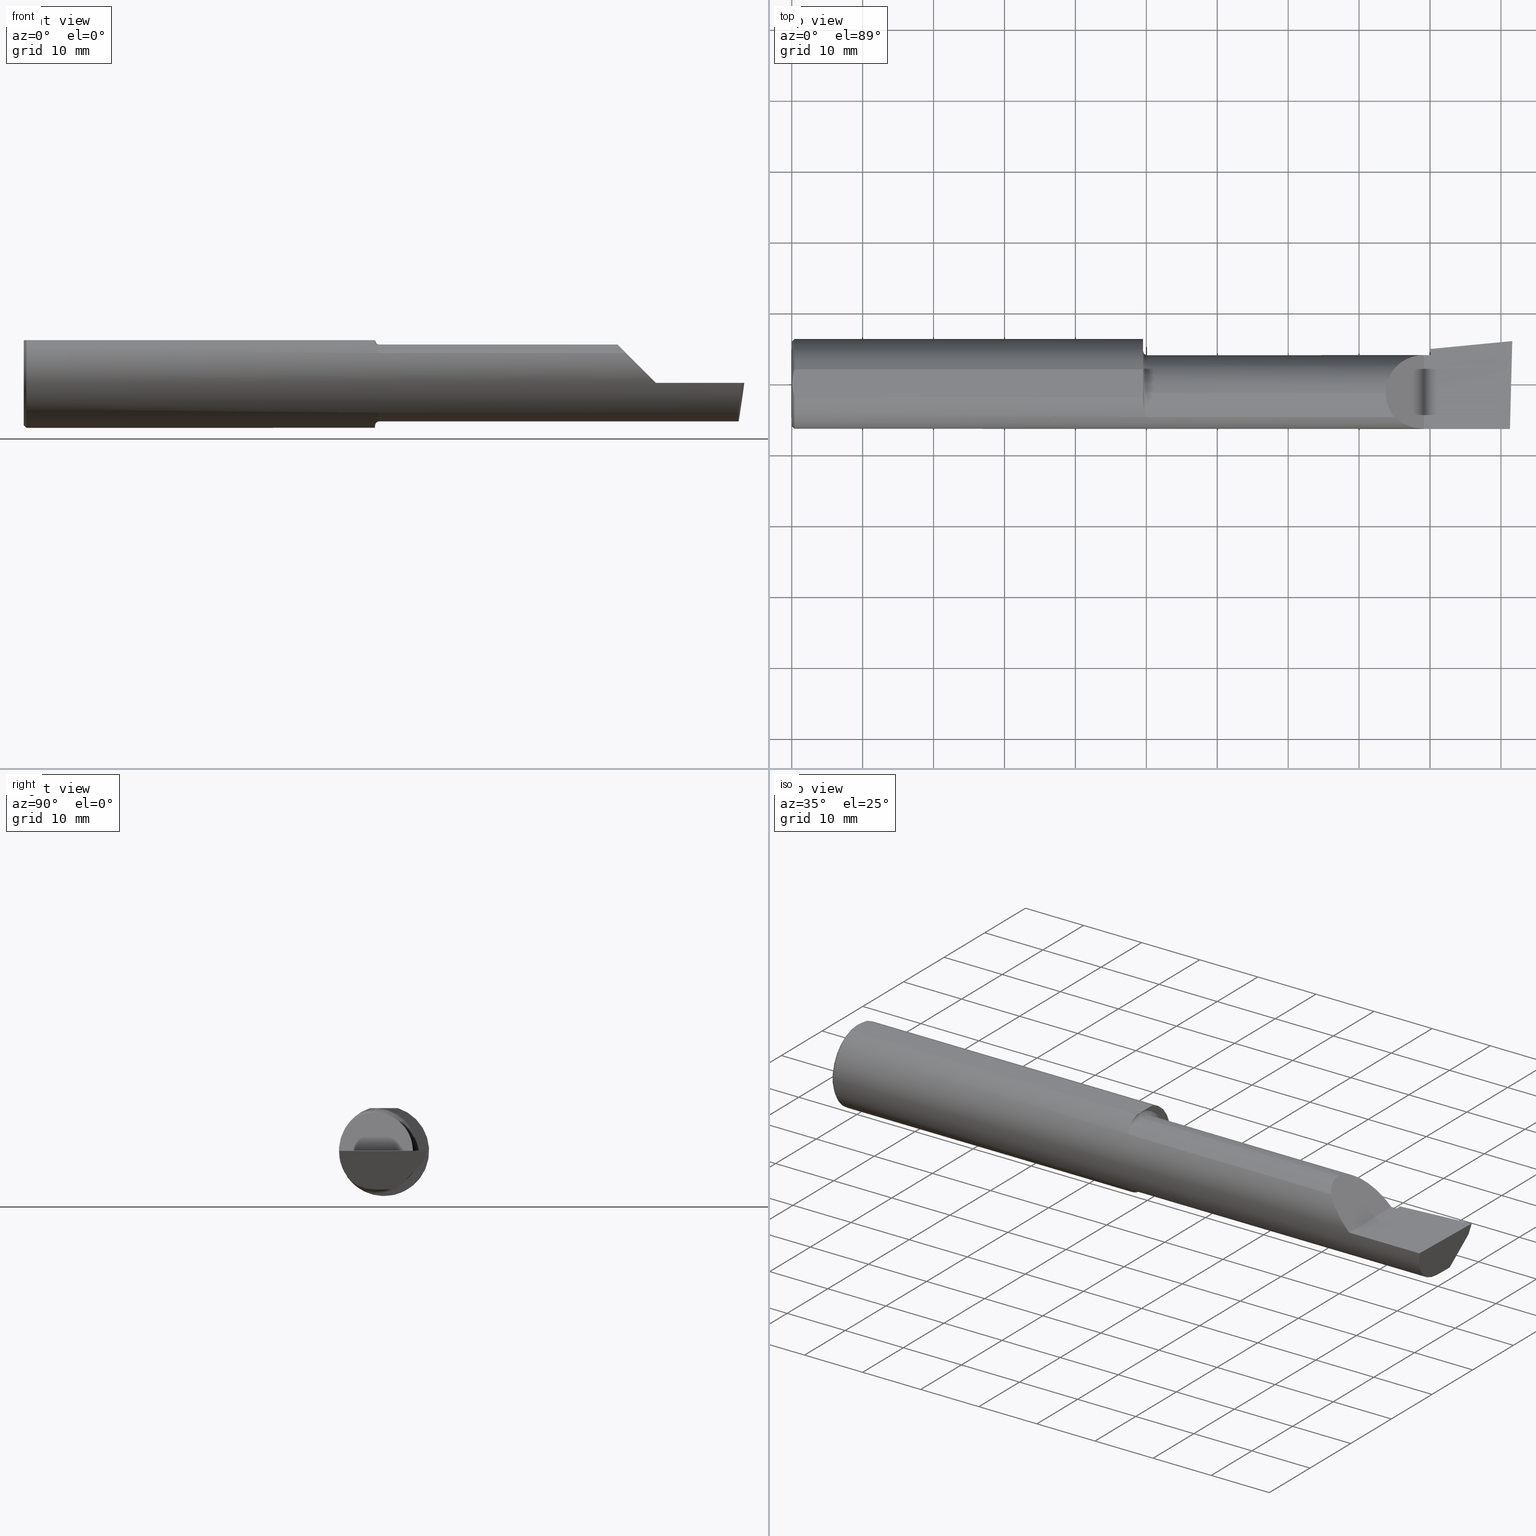
[diagram: canonical four-view strip — front | top / right | iso, engineering-drawing reading convention]
A machine part, canonical four-view strip (front | top / right | iso — engineering-drawing reading convention). The complete STEP part file that produces these views, byte-faithful:
ISO-10303-21;
HEADER;
FILE_DESCRIPTION (( 'STEP AP203' ),
    '1' );
FILE_NAME ('217567-B4902000.STEP',
    '2024-04-26T23:03:44',
    ( '' ),
    ( '' ),
    'SwSTEP 2.0',
    'SolidWorks 2022',
    '' );
FILE_SCHEMA (( 'CONFIG_CONTROL_DESIGN' ));
ENDSEC;

DATA;
#1 = ADVANCED_FACE ( 'NONE', ( #550 ), #797, .F. ) ;
#2 = DIRECTION ( 'NONE',  ( 0.000000000000000000, 0.000000000000000000, -1.000000000000000000 ) ) ;
#3 = DIRECTION ( 'NONE',  ( 0.06894566448119621160, -0.7160281025913035613, 0.6946583704589933683 ) ) ;
#4 = DIRECTION ( 'NONE',  ( -1.000000000000000000, 0.000000000000000000, 1.512967610748942321E-16 ) ) ;
#5 = EDGE_CURVE ( 'NONE', #315, #447, #389, .T. ) ;
#6 = EDGE_LOOP ( 'NONE', ( #83, #337, #92, #417, #469 ) ) ;
#7 = CALENDAR_DATE ( 2024, 26, 4 ) ;
#8 = AXIS2_PLACEMENT_3D ( 'NONE', #43, #403, #468 ) ;
#9 = CARTESIAN_POINT ( 'NONE',  ( 1.950000000000000178, -0.05299999999999996381, -0.2381499999999997785 ) ) ;
#10 = EDGE_LOOP ( 'NONE', ( #246, #473, #232, #638 ) ) ;
#11 = LINE ( 'NONE', #72, #398 ) ;
#12 = CARTESIAN_POINT ( 'NONE',  ( 0.003000000000000061645, -0.01298133447204029636, 0.2378500000000000059 ) ) ;
#13 = LOCAL_TIME ( 16, 3, 44.00000000000000000, #367 ) ;
#14 = EDGE_CURVE ( 'NONE', #660, #137, #491, .T. ) ;
#15 = DIRECTION ( 'NONE',  ( 0.000000000000000000, 0.000000000000000000, -1.000000000000000000 ) ) ;
#16 = DIRECTION ( 'NONE',  ( 0.9953961983671800740, 0.09584575252021031166, -0.000000000000000000 ) ) ;
#17 = CARTESIAN_POINT ( 'NONE',  ( 0.000000000000000000, -0.07650098038587477278, 0.2378500000000000059 ) ) ;
#18 = CARTESIAN_POINT ( 'NONE',  ( 1.975000000000000089, -0.05299999999999998462, 0.2131499999999997563 ) ) ;
#19 = CIRCLE ( 'NONE', #483, 0.2131500000000001172 ) ;
#20 = ORIENTED_EDGE ( 'NONE', *, *, #429, .T. ) ;
#21 = DIRECTION ( 'NONE',  ( 0.000000000000000000, 0.2936076258024058472, 0.9559260233253797923 ) ) ;
#22 = EDGE_CURVE ( 'NONE', #191, #353, #752, .T. ) ;
#23 = DIRECTION ( 'NONE',  ( 0.000000000000000000, 0.000000000000000000, -1.000000000000000000 ) ) ;
#24 = EDGE_LOOP ( 'NONE', ( #657, #187, #35, #715, #680 ) ) ;
#25 = DIRECTION ( 'NONE',  ( 0.1219104985252699169, 0.000000000000000000, 0.9925410975618693676 ) ) ;
#26 = B_SPLINE_CURVE_WITH_KNOTS ( 'NONE', 3,
 ( #712, #770, #651, #524, #794, #178 ),
 .UNSPECIFIED., .F., .F.,
 ( 4, 2, 4 ),
 ( 0.004653101494310745746, 0.005634627094920350784, 0.006616152695529954955 ),
 .UNSPECIFIED. ) ;
#27 = FACE_OUTER_BOUND ( 'NONE', #24, .T. ) ;
#28 = ADVANCED_FACE ( 'NONE', ( #145 ), #301, .F. ) ;
#29 = CONICAL_SURFACE ( 'NONE', #725, 0.2498499999999999888, 0.7853981633974601584 ) ;
#30 = CARTESIAN_POINT ( 'NONE',  ( 1.950000000000000178, 0.000000000000000000, 0.000000000000000000 ) ) ;
#31 = CYLINDRICAL_SURFACE ( 'NONE', #662, 0.2498499999999999888 ) ;
#32 = VERTEX_POINT ( 'NONE', #697 ) ;
#33 = CARTESIAN_POINT ( 'NONE',  ( 1.975000000000000089, -0.1868028301886799081, -0.1659208399614080509 ) ) ;
#34 = CARTESIAN_POINT ( 'NONE',  ( 1.957343635746627175, -0.1582230848692702530, 0.1936715022401944708 ) ) ;
#35 = ORIENTED_EDGE ( 'NONE', *, *, #512, .T. ) ;
#36 = PERSON_AND_ORGANIZATION_ROLE ( 'creator' ) ;
#37 = ADVANCED_FACE ( 'NONE', ( #82 ), #153, .F. ) ;
#38 = CARTESIAN_POINT ( 'NONE',  ( 3.541916792879877374, 0.05627666367902749156, -0.1830073912696826288 ) ) ;
#39 = CARTESIAN_POINT ( 'NONE',  ( 1.969290397284158445, -0.1841927918507055839, 0.1688179232533550678 ) ) ;
#40 = ORIENTED_EDGE ( 'NONE', *, *, #262, .T. ) ;
#41 = CARTESIAN_POINT ( 'NONE',  ( 1.975000000000000089, -0.1868028301886799636, 0.1659208399614079676 ) ) ;
#42 = CARTESIAN_POINT ( 'NONE',  ( 3.296849999999997394, -0.05299999999999998462, 0.2131499999999999506 ) ) ;
#43 = CARTESIAN_POINT ( 'NONE',  ( 3.527186805775588851, 0.1926232675528999905, -6.829619984160658046E-17 ) ) ;
#44 = ORIENTED_EDGE ( 'NONE', *, *, #485, .F. ) ;
#45 = APPROVAL_STATUS ( 'not_yet_approved' ) ;
#46 = CIRCLE ( 'NONE', #533, 0.2131499999999997563 ) ;
#47 = CARTESIAN_POINT ( 'NONE',  ( 3.534569588231495807, 0.1159501401920713659, -0.1355866241796521987 ) ) ;
#48 = CARTESIAN_POINT ( 'NONE',  ( 3.296849999999996061, -0.1021668565906576620, 0.2131499999999999229 ) ) ;
#49 = ORIENTED_EDGE ( 'NONE', *, *, #737, .F. ) ;
#50 = DIRECTION ( 'NONE',  ( 0.000000000000000000, 0.000000000000000000, 1.000000000000000000 ) ) ;
#51 = CARTESIAN_POINT ( 'NONE',  ( 1.975000000000000089, -0.1868028301886799081, -0.1659208399614080509 ) ) ;
#52 = VERTEX_POINT ( 'NONE', #688 ) ;
#53 = VECTOR ( 'NONE', #162, 39.37007874015748143 ) ;
#54 = AXIS2_PLACEMENT_3D ( 'NONE', #438, #259, #508 ) ;
#55 = CARTESIAN_POINT ( 'NONE',  ( 4.000000000000000000, -0.05299999999999998462, -0.2131499999999999229 ) ) ;
#56 = CARTESIAN_POINT ( 'NONE',  ( 3.544999999999999929, -0.05299999999999998462, -0.2131499999999999229 ) ) ;
#57 = EDGE_LOOP ( 'NONE', ( #228, #720, #364, #686, #540 ) ) ;
#58 = PERSON_AND_ORGANIZATION ( #175, #783 ) ;
#59 = EDGE_CURVE ( 'NONE', #526, #610, #269, .T. ) ;
#60 = LINE ( 'NONE', #733, #561 ) ;
#61 = CARTESIAN_POINT ( 'NONE',  ( 3.528944985009564217, 0.1743638780700109969, -0.06000000000000001166 ) ) ;
#62 = ADVANCED_FACE ( 'NONE', ( #320 ), #685, .F. ) ;
#63 = DIRECTION ( 'NONE',  ( -1.000000000000000000, -0.000000000000000000, -0.000000000000000000 ) ) ;
#64 = EDGE_LOOP ( 'NONE', ( #206, #180 ) ) ;
#65 = AXIS2_PLACEMENT_3D ( 'NONE', #135, #396, #758 ) ;
#66 = DIRECTION ( 'NONE',  ( -1.512967610748942321E-16, 0.000000000000000000, -1.000000000000000000 ) ) ;
#67 = ORIENTED_EDGE ( 'NONE', *, *, #539, .F. ) ;
#68 = COORDINATED_UNIVERSAL_TIME_OFFSET ( 8, 0, .BEHIND. ) ;
#69 = CARTESIAN_POINT ( 'NONE',  ( 3.544999999999999929, 0.2148312740513257935, -0.01988118725737609768 ) ) ;
#70 = DIRECTION ( 'NONE',  ( 0.000000000000000000, 0.000000000000000000, 1.000000000000000000 ) ) ;
#71 = ADVANCED_FACE ( 'NONE', ( #27 ), #29, .T. ) ;
#72 = CARTESIAN_POINT ( 'NONE',  ( 3.509999999999999787, -0.2500000000000000555, -6.245698675651499853E-17 ) ) ;
#73 = DIRECTION ( 'NONE',  ( -1.000000000000000000, -0.000000000000000000, -0.000000000000000000 ) ) ;
#74 = ORIENTED_EDGE ( 'NONE', *, *, #682, .F. ) ;
#75 = DIRECTION ( 'NONE',  ( 0.7071067811865391350, 0.000000000000000000, -0.7071067811865558994 ) ) ;
#76 = DIRECTION ( 'NONE',  ( 0.9953961983671800740, 0.09584575252021045044, -3.461085361674896978E-14 ) ) ;
#77 = EDGE_LOOP ( 'NONE', ( #164, #792, #620 ) ) ;
#78 = ADVANCED_FACE ( 'NONE', ( #267 ), #442, .T. ) ;
#79 = APPROVAL ( #716, 'UNSPECIFIED' ) ;
#80 = CARTESIAN_POINT ( 'NONE',  ( 3.987226101480002782, -0.2496655036952227513, -1.346597502108382365E-16 ) ) ;
#81 = AXIS2_PLACEMENT_3D ( 'NONE', #171, #411, #659 ) ;
#82 = FACE_OUTER_BOUND ( 'NONE', #10, .T. ) ;
#83 = ORIENTED_EDGE ( 'NONE', *, *, #658, .F. ) ;
#84 = ADVANCED_FACE ( 'NONE', ( #624 ), #567, .F. ) ;
#85 = DIRECTION ( 'NONE',  ( 0.000000000000000000, 0.000000000000000000, 1.000000000000000000 ) ) ;
#86 = DIRECTION ( 'NONE',  ( 0.000000000000000000, -1.000000000000000000, 1.138839417068643993E-16 ) ) ;
#87 = EDGE_LOOP ( 'NONE', ( #521, #487, #702, #306, #517 ) ) ;
#88 = CC_DESIGN_APPROVAL ( #141, ( #577 ) ) ;
#89 = AXIS2_PLACEMENT_3D ( 'NONE', #131, #687, #623 ) ;
#90 = CARTESIAN_POINT ( 'NONE',  ( 0.000000000000000000, -0.05299999999999998462, 0.000000000000000000 ) ) ;
#91 = LINE ( 'NONE', #458, #634 ) ;
#92 = ORIENTED_EDGE ( 'NONE', *, *, #5, .T. ) ;
#93 = FACE_OUTER_BOUND ( 'NONE', #547, .T. ) ;
#94 = DIRECTION ( 'NONE',  ( 0.000000000000000000, 0.000000000000000000, 1.000000000000000000 ) ) ;
#95 = CARTESIAN_POINT ( 'NONE',  ( 3.544999999999999929, 0.1759098001822370361, -0.06000000000000001166 ) ) ;
#96 = EDGE_CURVE ( 'NONE', #427, #595, #317, .T. ) ;
#97 = VERTEX_POINT ( 'NONE', #150 ) ;
#98 = CARTESIAN_POINT ( 'NONE',  ( 0.01499999999999999771, 0.000000000000000000, -0.2498499999999999888 ) ) ;
#99 = CARTESIAN_POINT ( 'NONE',  ( 1.951680550596500030, -0.1214972057705736574, 0.2186080375779518026 ) ) ;
#100 = ORIENTED_EDGE ( 'NONE', *, *, #380, .T. ) ;
#101 =( NAMED_UNIT ( * ) SI_UNIT ( $, .STERADIAN. ) SOLID_ANGLE_UNIT ( ) );
#102 = CARTESIAN_POINT ( 'NONE',  ( 3.509999999999999787, -0.2500000000000000555, -6.245698675651499853E-17 ) ) ;
#103 = CARTESIAN_POINT ( 'NONE',  ( 1.961268146151110114, -0.1703904609315284868, 0.1828159088808239963 ) ) ;
#104 = ORIENTED_EDGE ( 'NONE', *, *, #388, .T. ) ;
#105 =( CONVERSION_BASED_UNIT ( 'INCH', #456 ) LENGTH_UNIT ( ) NAMED_UNIT ( #144 ) );
#106 = EDGE_CURVE ( 'NONE', #281, #97, #563, .T. ) ;
#107 = CARTESIAN_POINT ( 'NONE',  ( 3.344079160038590626, -0.1868028301886808795, 0.1659208399614073015 ) ) ;
#108 = CC_DESIGN_PERSON_AND_ORGANIZATION_ASSIGNMENT ( #650, #36, ( #703 ) ) ;
#109 = FACE_OUTER_BOUND ( 'NONE', #57, .T. ) ;
#110 = EDGE_LOOP ( 'NONE', ( #401, #677, #674, #635 ) ) ;
#111 = CARTESIAN_POINT ( 'NONE',  ( 0.000000000000000000, 0.000000000000000000, 0.000000000000000000 ) ) ;
#112 = CIRCLE ( 'NONE', #136, 0.2131499999999997563 ) ;
#113 = CARTESIAN_POINT ( 'NONE',  ( 3.544999999999999929, 0.1601500000000001256, 4.685946446163640633E-16 ) ) ;
#114 = CARTESIAN_POINT ( 'NONE',  ( 3.966195468375008470, -0.05299999999999998462, -0.2131499999999999229 ) ) ;
#115 = ORIENTED_EDGE ( 'NONE', *, *, #130, .F. ) ;
#116 = DIRECTION ( 'NONE',  ( 0.000000000000000000, -1.000000000000000000, 1.138839417068643993E-16 ) ) ;
#117 = LINE ( 'NONE', #56, #796 ) ;
#118 = EDGE_LOOP ( 'NONE', ( #439, #435, #443, #366 ) ) ;
#119 = VECTOR ( 'NONE', #562, 39.37007874015748143 ) ;
#120 = CARTESIAN_POINT ( 'NONE',  ( 0.000000000000000000, 0.000000000000000000, 0.000000000000000000 ) ) ;
#121 = EDGE_LOOP ( 'NONE', ( #772, #115, #740, #237, #44, #689 ) ) ;
#122 = ADVANCED_FACE ( 'NONE', ( #139 ), #271, .T. ) ;
#123 = APPROVAL_ROLE ( '' ) ;
#124 = DIRECTION ( 'NONE',  ( 0.9953961983671787417, 0.09584575252022452252, -1.506002207992170530E-16 ) ) ;
#125 = CARTESIAN_POINT ( 'NONE',  ( 1.950001800035618071, -0.04901601311796530136, 0.2378500024320483464 ) ) ;
#126 =( BOUNDED_CURVE ( )  B_SPLINE_CURVE ( 3, ( #647, #47, #338, #152 ),
 .UNSPECIFIED., .F., .F. ) 
 B_SPLINE_CURVE_WITH_KNOTS ( ( 4, 4 ),
 ( 0.4968328636548078880, 1.034445644973930545 ),
 .UNSPECIFIED. ) 
 CURVE ( )  GEOMETRIC_REPRESENTATION_ITEM ( )  RATIONAL_B_SPLINE_CURVE ( ( 1.000000000000000000, 0.9760590552538844777, 0.9760590552538844777, 1.000000000000000000 ) ) 
 REPRESENTATION_ITEM ( '' )  );
#127 = DIRECTION ( 'NONE',  ( -1.000000000000000000, -0.000000000000000000, -0.000000000000000000 ) ) ;
#128 = AXIS2_PLACEMENT_3D ( 'NONE', #111, #542, #645 ) ;
#129 = ORIENTED_EDGE ( 'NONE', *, *, #205, .F. ) ;
#130 = EDGE_CURVE ( 'NONE', #32, #392, #571, .T. ) ;
#131 = CARTESIAN_POINT ( 'NONE',  ( 1.950000000000000178, 0.1851499999999997870, 0.000000000000000000 ) ) ;
#132 = ORIENTED_EDGE ( 'NONE', *, *, #437, .F. ) ;
#133 = DIRECTION ( 'NONE',  ( 0.000000000000000000, 0.000000000000000000, 1.000000000000000000 ) ) ;
#134 = VECTOR ( 'NONE', #304, 39.37007874015748143 ) ;
#135 = CARTESIAN_POINT ( 'NONE',  ( 1.975000000000000089, -0.05299999999999998462, 0.000000000000000000 ) ) ;
#136 = AXIS2_PLACEMENT_3D ( 'NONE', #363, #63, #553 ) ;
#137 = VERTEX_POINT ( 'NONE', #18 ) ;
#138 = DIRECTION ( 'NONE',  ( 0.000000000000000000, -1.000000000000000000, 0.000000000000000000 ) ) ;
#139 = FACE_OUTER_BOUND ( 'NONE', #590, .T. ) ;
#140 = EDGE_CURVE ( 'NONE', #292, #601, #236, .T. ) ;
#141 = APPROVAL ( #371, 'UNSPECIFIED' ) ;
#142 = LOCAL_TIME ( 16, 3, 44.00000000000000000, #460 ) ;
#143 = CARTESIAN_POINT ( 'NONE',  ( 1.975000000000000089, -0.05299999999999996381, -0.2131499999999997563 ) ) ;
#144 = DIMENSIONAL_EXPONENTS ( 1.000000000000000000, 0.000000000000000000, 0.000000000000000000, 0.000000000000000000, 0.000000000000000000, 0.000000000000000000, 0.000000000000000000 ) ;
#145 = FACE_OUTER_BOUND ( 'NONE', #557, .T. ) ;
#146 = ORIENTED_EDGE ( 'NONE', *, *, #446, .T. ) ;
#147 = EDGE_CURVE ( 'NONE', #785, #137, #46, .T. ) ;
#148 = DIRECTION ( 'NONE',  ( -1.000000000000000000, -0.000000000000000000, -0.000000000000000000 ) ) ;
#149 = VECTOR ( 'NONE', #430, 39.37007874015748143 ) ;
#150 = CARTESIAN_POINT ( 'NONE',  ( 1.950000000000000178, -0.07650098038590487370, 0.2378500000000000059 ) ) ;
#151 = ORIENTED_EDGE ( 'NONE', *, *, #186, .F. ) ;
#152 = CARTESIAN_POINT ( 'NONE',  ( 3.540349815208490458, 0.05592018782259767368, -0.1832193089843152378 ) ) ;
#153 = PLANE ( 'NONE',  #54 ) ;
#154 = AXIS2_PLACEMENT_3D ( 'NONE', #481, #729, #243 ) ;
#155 = VERTEX_POINT ( 'NONE', #346 ) ;
#156 = AXIS2_PLACEMENT_3D ( 'NONE', #30, #407, #289 ) ;
#157 = DIRECTION ( 'NONE',  ( 0.9953961983671800740, 0.09584575252021027003, -1.516874858616837700E-17 ) ) ;
#158 = ADVANCED_FACE ( 'NONE', ( #400 ), #428, .F. ) ;
#159 = CARTESIAN_POINT ( 'NONE',  ( 1.965857071685142010, -0.1799228808997984097, 0.1733778622677443204 ) ) ;
#160 = ORIENTED_EDGE ( 'NONE', *, *, #147, .T. ) ;
#161 = APPROVAL_DATE_TIME ( #596, #252 ) ;
#162 = DIRECTION ( 'NONE',  ( 0.7071067811865391350, 8.659560562355035164E-17, 0.7071067811865558994 ) ) ;
#163 = DIRECTION ( 'NONE',  ( 0.000000000000000000, 0.000000000000000000, 1.000000000000000000 ) ) ;
#164 = ORIENTED_EDGE ( 'NONE', *, *, #741, .F. ) ;
#165 = COORDINATED_UNIVERSAL_TIME_OFFSET ( 8, 0, .BEHIND. ) ;
#166 = CARTESIAN_POINT ( 'NONE',  ( 3.544999999999999929, -0.2500000000000000555, -6.775237339413629936E-17 ) ) ;
#167 = DIRECTION ( 'NONE',  ( 0.000000000000000000, 0.000000000000000000, 1.000000000000000000 ) ) ;
#168 = ORIENTED_EDGE ( 'NONE', *, *, #186, .T. ) ;
#169 = DATE_AND_TIME ( #282, #681 ) ;
#170 = CARTESIAN_POINT ( 'NONE',  ( 0.003000000000000035624, 4.000210840755228160E-17, 0.2378500000000000059 ) ) ;
#171 = CARTESIAN_POINT ( 'NONE',  ( 1.950000000000000178, -0.05299999999999998462, 0.000000000000000000 ) ) ;
#172 = AXIS2_PLACEMENT_3D ( 'NONE', #700, #204, #208 ) ;
#173 = ORIENTED_EDGE ( 'NONE', *, *, #283, .T. ) ;
#174 = APPLICATION_CONTEXT ( 'configuration controlled 3d designs of mechanical parts and assemblies' ) ;
#175 = PERSON ( 'UNSPECIFIED', 'UNSPECIFIED', 'UNSPECIFIED', ('UNSPECIFIED'), ('UNSPECIFIED'), ('UNSPECIFIED') ) ;
#176 = PERSON_AND_ORGANIZATION ( #175, #783 ) ;
#177 = EDGE_CURVE ( 'NONE', #387, #493, #211, .T. ) ;
#178 = CARTESIAN_POINT ( 'NONE',  ( 0.01499999999999999771, 0.07650098038587481442, 0.2378500000000000059 ) ) ;
#179 = CARTESIAN_POINT ( 'NONE',  ( 1.950000000000000178, -0.06494989539702750170, 0.2378500000000000059 ) ) ;
#180 = ORIENTED_EDGE ( 'NONE', *, *, #368, .T. ) ;
#181 = LINE ( 'NONE', #234, #257 ) ;
#182 = CARTESIAN_POINT ( 'NONE',  ( 0.000000000000000000, -0.05299999999999996381, -0.2131499999999999506 ) ) ;
#183 = ORIENTED_EDGE ( 'NONE', *, *, #350, .F. ) ;
#184 = VECTOR ( 'NONE', #655, 39.37007874015748143 ) ;
#185 = DIRECTION ( 'NONE',  ( -1.000000000000000000, -0.000000000000000000, -0.000000000000000000 ) ) ;
#186 = EDGE_CURVE ( 'NONE', #155, #785, #288, .T. ) ;
#187 = ORIENTED_EDGE ( 'NONE', *, *, #414, .F. ) ;
#188 = CARTESIAN_POINT ( 'NONE',  ( 3.296849999999997394, -0.05299999999999998462, 0.2131499999999999506 ) ) ;
#189 = CARTESIAN_POINT ( 'NONE',  ( 1.950000000000000178, -0.04503596074371395142, 0.2378500000000000059 ) ) ;
#190 = CARTESIAN_POINT ( 'NONE',  ( 1.970138573936399684, -0.1849738682364335252, -0.1679602226613247096 ) ) ;
#191 = VERTEX_POINT ( 'NONE', #95 ) ;
#192 = APPROVAL_DATE_TIME ( #418, #141 ) ;
#193 = PRODUCT_RELATED_PRODUCT_CATEGORY ( 'detail', '', ( #391 ) ) ;
#194 = LINE ( 'NONE', #17, #319 ) ;
#195 = ORIENTED_EDGE ( 'NONE', *, *, #106, .F. ) ;
#196 = CLOSED_SHELL ( 'NONE', ( #787, #451, #158, #62, #290, #626, #199, #617, #344, #654, #84, #71, #28, #78, #523, #719, #678, #37, #231, #1, #122, #490 ) ) ;
#197 = CYLINDRICAL_SURFACE ( 'NONE', #566, 0.2131499999999999506 ) ;
#198 = CARTESIAN_POINT ( 'NONE',  ( 0.008160184410935175658, -0.05138200716576606791, 0.2378500000000000336 ) ) ;
#199 = ADVANCED_FACE ( 'NONE', ( #600 ), #31, .T. ) ;
#200 = CC_DESIGN_PERSON_AND_ORGANIZATION_ASSIGNMENT ( #602, #555, ( #577 ) ) ;
#201 = CARTESIAN_POINT ( 'NONE',  ( 0.004068542164723859197, -0.02585015905295368760, 0.2378499999999999226 ) ) ;
#202 = ORIENTED_EDGE ( 'NONE', *, *, #205, .T. ) ;
#203 = LINE ( 'NONE', #691, #299 ) ;
#204 = DIRECTION ( 'NONE',  ( 1.000000000000000000, 0.000000000000000000, 0.000000000000000000 ) ) ;
#205 = EDGE_CURVE ( 'NONE', #552, #329, #767, .T. ) ;
#206 = ORIENTED_EDGE ( 'NONE', *, *, #414, .T. ) ;
#207 = DIRECTION ( 'NONE',  ( -1.000000000000000000, -0.000000000000000000, -0.000000000000000000 ) ) ;
#208 = DIRECTION ( 'NONE',  ( 0.000000000000000000, 0.000000000000000000, -1.000000000000000000 ) ) ;
#209 = VERTEX_POINT ( 'NONE', #585 ) ;
#210 = CARTESIAN_POINT ( 'NONE',  ( 3.543466858877805326, 0.05663251955088012546, -0.1827944341085905589 ) ) ;
#211 = CIRCLE ( 'NONE', #776, 0.2381499999999997785 ) ;
#212 = DIRECTION ( 'NONE',  ( 0.000000000000000000, 0.000000000000000000, 1.000000000000000000 ) ) ;
#213 = AXIS2_PLACEMENT_3D ( 'NONE', #549, #570, #266 ) ;
#214 = EDGE_CURVE ( 'NONE', #643, #660, #786, .T. ) ;
#215 = DIRECTION ( 'NONE',  ( -0.7071067811865439090, 0.000000000000000000, -0.7071067811865511255 ) ) ;
#216 = CARTESIAN_POINT ( 'NONE',  ( 7.089685198749692867E-32, -0.2498499999999999610, 4.685946446163635703E-16 ) ) ;
#217 = AXIS2_PLACEMENT_3D ( 'NONE', #102, #215, #593 ) ;
#218 = ORIENTED_EDGE ( 'NONE', *, *, #631, .F. ) ;
#219 = APPLICATION_PROTOCOL_DEFINITION ( 'international standard', 'config_control_design', 1994, #254 ) ;
#220 = VECTOR ( 'NONE', #762, 39.37007874015748143 ) ;
#221 = DIRECTION ( 'NONE',  ( -0.000000000000000000, 0.000000000000000000, 1.000000000000000000 ) ) ;
#222 = CARTESIAN_POINT ( 'NONE',  ( 1.952700302592143444, -0.1312404656039932171, 0.2128935242986060850 ) ) ;
#223 = EDGE_LOOP ( 'NONE', ( #405, #744, #74, #630, #132, #195, #723, #431 ) ) ;
#224 = PERSON_AND_ORGANIZATION ( #175, #783 ) ;
#225 = LINE ( 'NONE', #166, #184 ) ;
#226 = CARTESIAN_POINT ( 'NONE',  ( 1.950000000000000178, -0.08036415094339718901, 0.2365726648265747134 ) ) ;
#227 = UNCERTAINTY_MEASURE_WITH_UNIT (LENGTH_MEASURE( 1.000000000000000082E-05 ), #105, 'distance_accuracy_value', 'NONE');
#228 = ORIENTED_EDGE ( 'NONE', *, *, #368, .F. ) ;
#229 = CARTESIAN_POINT ( 'NONE',  ( 3.544999999999999929, 0.02733053485622426171, -0.2131499999999999506 ) ) ;
#230 = CARTESIAN_POINT ( 'NONE',  ( 1.950000000000000178, -0.06494989539702750170, 0.2378500000000000059 ) ) ;
#231 = ADVANCED_FACE ( 'NONE', ( #352 ), #525, .F. ) ;
#232 = ORIENTED_EDGE ( 'NONE', *, *, #759, .T. ) ;
#233 = CARTESIAN_POINT ( 'NONE',  ( 0.000000000000000000, -0.05299999999999998462, 0.000000000000000000 ) ) ;
#234 = CARTESIAN_POINT ( 'NONE',  ( 3.528944985009564217, 0.1743638780700109969, -0.06000000000000001166 ) ) ;
#235 = DIRECTION ( 'NONE',  ( 0.000000000000000000, 0.000000000000000000, 1.000000000000000000 ) ) ;
#236 = CIRCLE ( 'NONE', #316, 0.2498499999999999888 ) ;
#237 = ORIENTED_EDGE ( 'NONE', *, *, #669, .F. ) ;
#238 =( BOUNDED_CURVE ( )  B_SPLINE_CURVE ( 3, ( #546, #360, #791, #240 ),
 .UNSPECIFIED., .F., .T. ) 
 B_SPLINE_CURVE_WITH_KNOTS ( ( 4, 4 ),
 ( 4.712388980384687898, 5.438654041019563401 ),
 .UNSPECIFIED. ) 
 CURVE ( )  GEOMETRIC_REPRESENTATION_ITEM ( )  RATIONAL_B_SPLINE_CURVE ( ( 1.000000000000000000, 0.9565258159411005323, 0.9565258159411005323, 1.000000000000000000 ) ) 
 REPRESENTATION_ITEM ( '' )  );
#239 = LINE ( 'NONE', #603, #604 ) ;
#240 = CARTESIAN_POINT ( 'NONE',  ( 3.344079160038590626, -0.1868028301886808795, 0.1659208399614073015 ) ) ;
#241 = VERTEX_POINT ( 'NONE', #771 ) ;
#242 = EDGE_CURVE ( 'NONE', #447, #281, #495, .T. ) ;
#243 = DIRECTION ( 'NONE',  ( -0.000000000000000000, 0.000000000000000000, 1.000000000000000000 ) ) ;
#244 = AXIS2_PLACEMENT_3D ( 'NONE', #120, #127, #663 ) ;
#245 = CARTESIAN_POINT ( 'NONE',  ( 0.01499999999999999771, 0.07650098038587481442, 0.2378500000000000059 ) ) ;
#246 = ORIENTED_EDGE ( 'NONE', *, *, #572, .T. ) ;
#247 = CARTESIAN_POINT ( 'NONE',  ( 1.969285582744839225, -0.1841881072713813239, -0.1688230283719345526 ) ) ;
#248 =( GEOMETRIC_REPRESENTATION_CONTEXT ( 3 ) GLOBAL_UNCERTAINTY_ASSIGNED_CONTEXT ( ( #227 ) ) GLOBAL_UNIT_ASSIGNED_CONTEXT ( ( #105, #413, #101 ) ) REPRESENTATION_CONTEXT ( 'NONE', 'WORKASPACE' ) );
#249 = DIRECTION ( 'NONE',  ( 0.000000000000000000, -0.6963153109074924352, -0.7177360153954949196 ) ) ;
#250 = CARTESIAN_POINT ( 'NONE',  ( 3.992127980275556709, 0.2189633278254519977, -0.05999999999999999778 ) ) ;
#251 = ORIENTED_EDGE ( 'NONE', *, *, #507, .F. ) ;
#252 = APPROVAL ( #45, 'UNSPECIFIED' ) ;
#253 = CIRCLE ( 'NONE', #598, 0.2498499999999999888 ) ;
#254 = APPLICATION_CONTEXT ( 'configuration controlled 3d designs of mechanical parts and assemblies' ) ;
#255 = CARTESIAN_POINT ( 'NONE',  ( 1.957341173198633433, -0.1582250006961563316, -0.1936724403215122625 ) ) ;
#256 = ORIENTED_EDGE ( 'NONE', *, *, #437, .T. ) ;
#257 = VECTOR ( 'NONE', #726, 39.37007874015748854 ) ;
#258 = CARTESIAN_POINT ( 'NONE',  ( 0.01499999999998191669, -0.07650098038590480432, 0.2378500000000000059 ) ) ;
#259 = DIRECTION ( 'NONE',  ( 9.717439401676380705E-34, 1.707404996040164512E-16, 1.000000000000000000 ) ) ;
#260 = AXIS2_PLACEMENT_3D ( 'NONE', #274, #354, #528 ) ;
#261 = CARTESIAN_POINT ( 'NONE',  ( 3.987221270274236229, -0.2498499999999999888, -1.346590301211604859E-16 ) ) ;
#262 = EDGE_CURVE ( 'NONE', #353, #32, #91, .T. ) ;
#263 = DIRECTION ( 'NONE',  ( -1.000000000000000000, -0.000000000000000000, -0.000000000000000000 ) ) ;
#264 = CARTESIAN_POINT ( 'NONE',  ( 1.950000900032402340, -0.05299999999999998462, 0.2378500000000221548 ) ) ;
#265 = ORIENTED_EDGE ( 'NONE', *, *, #631, .T. ) ;
#266 = DIRECTION ( 'NONE',  ( 0.000000000000000000, 0.000000000000000000, 1.000000000000000000 ) ) ;
#267 = FACE_OUTER_BOUND ( 'NONE', #118, .T. ) ;
#268 = ORIENTED_EDGE ( 'NONE', *, *, #283, .F. ) ;
#269 = CIRCLE ( 'NONE', #65, 0.2131499999999997563 ) ;
#270 = CARTESIAN_POINT ( 'NONE',  ( 3.987221270274236229, -0.2498499999999999888, -1.346590301211604859E-16 ) ) ;
#271 = PLANE ( 'NONE',  #375 ) ;
#272 = EDGE_CURVE ( 'NONE', #97, #155, #253, .T. ) ;
#273 = ORIENTED_EDGE ( 'NONE', *, *, #475, .F. ) ;
#274 = CARTESIAN_POINT ( 'NONE',  ( 4.000000000000000000, 0.2998500000000000609, 0.2378499999999999504 ) ) ;
#275 = CARTESIAN_POINT ( 'NONE',  ( 1.949999999999999956, -0.09104204635388243871, 0.2329453649474652610 ) ) ;
#276 = ORIENTED_EDGE ( 'NONE', *, *, #611, .T. ) ;
#277 = CIRCLE ( 'NONE', #664, 0.2381499999999997785 ) ;
#278 = MECHANICAL_CONTEXT ( 'NONE', #174, 'mechanical' ) ;
#279 = DIRECTION ( 'NONE',  ( -1.000000000000000000, -0.000000000000000000, -0.000000000000000000 ) ) ;
#280 = CARTESIAN_POINT ( 'NONE',  ( 3.313215146136122335, -0.1485302233682071760, 0.1967848538638751477 ) ) ;
#281 = VERTEX_POINT ( 'NONE', #179 ) ;
#282 = CALENDAR_DATE ( 2024, 26, 4 ) ;
#283 = EDGE_CURVE ( 'NONE', #155, #281, #675, .T. ) ;
#284 = CARTESIAN_POINT ( 'NONE',  ( 3.540349815208490458, 0.05592018782259767368, -0.1832193089843152378 ) ) ;
#285 = CARTESIAN_POINT ( 'NONE',  ( 1.970144309637440916, -0.1849788583324337710, 0.1679547276881061257 ) ) ;
#286 = ORIENTED_EDGE ( 'NONE', *, *, #569, .F. ) ;
#287 = CYLINDRICAL_SURFACE ( 'NONE', #488, 0.2131499999999999506 ) ;
#288 = B_SPLINE_CURVE_WITH_KNOTS ( 'NONE', 3,
 ( #226, #275, #534, #99, #222, #479, #34, #103, #713, #159, #581, #39, #285, #652, #529, #355 ),
 .UNSPECIFIED., .F., .F.,
 ( 4, 2, 2, 2, 2, 2, 2, 4 ),
 ( 0.0001034694911878293507, 0.0009591263138367580460, 0.001814783136485686619, 0.002670439959134615193, 0.003098268370459076118, 0.003312182576121310267, 0.003419139678952422354, 0.003526096781783534875 ),
 .UNSPECIFIED. ) ;
#289 = DIRECTION ( 'NONE',  ( 0.000000000000000000, 0.000000000000000000, -1.000000000000000000 ) ) ;
#290 = ADVANCED_FACE ( 'NONE', ( #109 ), #738, .T. ) ;
#291 = CARTESIAN_POINT ( 'NONE',  ( 3.344079160038590626, -0.1868028301886808795, 0.1659208399614073015 ) ) ;
#292 = VERTEX_POINT ( 'NONE', #245 ) ;
#293 = CALENDAR_DATE ( 2024, 26, 4 ) ;
#294 = PLANE ( 'NONE',  #217 ) ;
#295 = CARTESIAN_POINT ( 'NONE',  ( 1.950001800093990711, -0.05698398688203908796, 0.2378499975680403167 ) ) ;
#296 = ORIENTED_EDGE ( 'NONE', *, *, #750, .T. ) ;
#297 = APPROVAL_DATE_TIME ( #536, #79 ) ;
#298 = CARTESIAN_POINT ( 'NONE',  ( 3.544999999999999929, -0.05299999999999998462, -0.2131499999999999229 ) ) ;
#299 = VECTOR ( 'NONE', #21, 39.37007874015748854 ) ;
#300 = CARTESIAN_POINT ( 'NONE',  ( 1.967016733372314974, -0.1817333077058773672, -0.1714754572696059742 ) ) ;
#301 = TOROIDAL_SURFACE ( 'NONE', #436, 0.2381499999999997785, 0.02499999999999995628 ) ;
#302 = ORIENTED_EDGE ( 'NONE', *, *, #611, .F. ) ;
#303 = DATE_AND_TIME ( #312, #13 ) ;
#304 = DIRECTION ( 'NONE',  ( -1.000000000000000000, 5.691349986800549142E-18, -0.000000000000000000 ) ) ;
#305 = DIRECTION ( 'NONE',  ( 0.000000000000000000, 1.000000000000000000, -1.707404996040164265E-16 ) ) ;
#306 = ORIENTED_EDGE ( 'NONE', *, *, #569, .T. ) ;
#307 = DIRECTION ( 'NONE',  ( 1.000000000000000000, 0.000000000000000000, 0.000000000000000000 ) ) ;
#308 = ORIENTED_EDGE ( 'NONE', *, *, #714, .T. ) ;
#309 = EDGE_CURVE ( 'NONE', #734, #526, #426, .T. ) ;
#310 = CARTESIAN_POINT ( 'NONE',  ( 1.965875558094660525, -0.1799506819598044316, -0.1733486322212175468 ) ) ;
#311 = VERTEX_POINT ( 'NONE', #739 ) ;
#312 = CALENDAR_DATE ( 2024, 26, 4 ) ;
#313 = DIRECTION ( 'NONE',  ( 1.000000000000000000, 0.000000000000000000, 0.000000000000000000 ) ) ;
#314 = EDGE_CURVE ( 'NONE', #610, #493, #592, .T. ) ;
#315 = VERTEX_POINT ( 'NONE', #612 ) ;
#316 = AXIS2_PLACEMENT_3D ( 'NONE', #516, #763, #212 ) ;
#317 = B_SPLINE_CURVE_WITH_KNOTS ( 'NONE', 3,
 ( #449, #705, #198, #201, #12, #692 ),
 .UNSPECIFIED., .F., .F.,
 ( 4, 2, 4 ),
 ( 0.002692677063605041030, 0.003672889278957893171, 0.004653101494310745746 ),
 .UNSPECIFIED. ) ;
#318 = CARTESIAN_POINT ( 'NONE',  ( 1.950000000000000178, -0.05299999999999998462, 0.000000000000000000 ) ) ;
#319 = VECTOR ( 'NONE', #263, 39.37007874015748143 ) ;
#320 = FACE_OUTER_BOUND ( 'NONE', #6, .T. ) ;
#321 = CC_DESIGN_PERSON_AND_ORGANIZATION_ASSIGNMENT ( #176, #406, ( #498 ) ) ;
#322 = AXIS2_PLACEMENT_3D ( 'NONE', #90, #279, #580 ) ;
#323 = DIRECTION ( 'NONE',  ( -0.000000000000000000, 1.000000000000000000, -0.000000000000000000 ) ) ;
#324 = DIRECTION ( 'NONE',  ( 0.000000000000000000, 0.000000000000000000, 1.000000000000000000 ) ) ;
#325 = VERTEX_POINT ( 'NONE', #619 ) ;
#326 = EDGE_CURVE ( 'NONE', #775, #694, #373, .T. ) ;
#327 = CARTESIAN_POINT ( 'NONE',  ( 3.532795049205045501, 0.1343794326159074848, -0.1015966078791037813 ) ) ;
#328 = DIRECTION ( 'NONE',  ( -0.09584575252021045044, 0.9953961983671800740, 0.000000000000000000 ) ) ;
#329 = VERTEX_POINT ( 'NONE', #605 ) ;
#330 = FACE_OUTER_BOUND ( 'NONE', #121, .T. ) ;
#331 = VERTEX_POINT ( 'NONE', #416 ) ;
#332 = PLANE ( 'NONE',  #543 ) ;
#333 = EDGE_CURVE ( 'NONE', #660, #311, #339, .T. ) ;
#334 = CC_DESIGN_PERSON_AND_ORGANIZATION_ASSIGNMENT ( #466, #522, ( #391 ) ) ;
#335 = DIRECTION ( 'NONE',  ( -0.02617694830786351096, -0.9996573249755575929, 1.707029659308874488E-16 ) ) ;
#336 = APPROVAL_PERSON_ORGANIZATION ( #58, #141, #123 ) ;
#337 = ORIENTED_EDGE ( 'NONE', *, *, #425, .F. ) ;
#338 = CARTESIAN_POINT ( 'NONE',  ( 3.537149611766881030, 0.08915557130098386573, -0.1634615431086031134 ) ) ;
#339 =( BOUNDED_CURVE ( )  B_SPLINE_CURVE ( 3, ( #188, #679, #556, #421 ),
 .UNSPECIFIED., .F., .T. ) 
 B_SPLINE_CURVE_WITH_KNOTS ( ( 4, 4 ),
 ( 0.000000000000000000, 1.570796326794898112 ),
 .UNSPECIFIED. ) 
 CURVE ( )  GEOMETRIC_REPRESENTATION_ITEM ( )  RATIONAL_B_SPLINE_CURVE ( ( 1.000000000000000000, 0.8047378541243646044, 0.8047378541243646044, 1.000000000000000000 ) ) 
 REPRESENTATION_ITEM ( '' )  );
#340 = CARTESIAN_POINT ( 'NONE',  ( 1.975000000000000089, -0.05299999999999996381, -0.2381499999999997785 ) ) ;
#341 = DIRECTION ( 'NONE',  ( 0.000000000000000000, 0.000000000000000000, 1.000000000000000000 ) ) ;
#342 = EDGE_LOOP ( 'NONE', ( #286, #20, #202, #104, #615, #151, #422, #256, #665, #459, #756, #505, #706 ) ) ;
#343 = CIRCLE ( 'NONE', #441, 0.2498499999999999888 ) ;
#344 = ADVANCED_FACE ( 'NONE', ( #369 ), #423, .F. ) ;
#345 = CARTESIAN_POINT ( 'NONE',  ( 3.544999999999999929, 0.05698775240724691937, -0.1825804393148461047 ) ) ;
#346 = CARTESIAN_POINT ( 'NONE',  ( 1.950000000000000178, -0.08036415094339718901, 0.2365726648265747134 ) ) ;
#347 = ORIENTED_EDGE ( 'NONE', *, *, #640, .F. ) ;
#348 = PERSON_AND_ORGANIZATION ( #175, #783 ) ;
#349 = APPROVAL_PERSON_ORGANIZATION ( #409, #79, #358 ) ;
#350 = EDGE_CURVE ( 'NONE', #137, #526, #112, .T. ) ;
#351 = FACE_OUTER_BOUND ( 'NONE', #77, .T. ) ;
#352 = FACE_OUTER_BOUND ( 'NONE', #748, .T. ) ;
#353 = VERTEX_POINT ( 'NONE', #250 ) ;
#354 = DIRECTION ( 'NONE',  ( 0.000000000000000000, -1.138839417068643993E-16, -1.000000000000000000 ) ) ;
#355 = CARTESIAN_POINT ( 'NONE',  ( 1.975000000000000089, -0.1868028301886799636, 0.1659208399614079676 ) ) ;
#356 = AXIS2_PLACEMENT_3D ( 'NONE', #589, #648, #163 ) ;
#357 = ORIENTED_EDGE ( 'NONE', *, *, #147, .F. ) ;
#358 = APPROVAL_ROLE ( '' ) ;
#359 = FACE_OUTER_BOUND ( 'NONE', #408, .T. ) ;
#360 = CARTESIAN_POINT ( 'NONE',  ( 3.448145753305724259, -0.2498500000000001275, 0.06185424669427388999 ) ) ;
#361 = ORIENTED_EDGE ( 'NONE', *, *, #572, .F. ) ;
#362 = CARTESIAN_POINT ( 'NONE',  ( 3.544999999999999929, 0.2148312740513257935, -0.01988118725737609768 ) ) ;
#363 = CARTESIAN_POINT ( 'NONE',  ( 1.975000000000000089, -0.05299999999999998462, 0.000000000000000000 ) ) ;
#364 = ORIENTED_EDGE ( 'NONE', *, *, #682, .T. ) ;
#365 = CARTESIAN_POINT ( 'NONE',  ( 1.972232603162240583, -0.1862758070845880742, -0.1665151405181419519 ) ) ;
#366 = ORIENTED_EDGE ( 'NONE', *, *, #177, .T. ) ;
#367 = COORDINATED_UNIVERSAL_TIME_OFFSET ( 8, 0, .BEHIND. ) ;
#368 = EDGE_CURVE ( 'NONE', #241, #331, #731, .T. ) ;
#369 = FACE_OUTER_BOUND ( 'NONE', #728, .T. ) ;
#370 = ORIENTED_EDGE ( 'NONE', *, *, #214, .F. ) ;
#371 = APPROVAL_STATUS ( 'not_yet_approved' ) ;
#372 = EDGE_CURVE ( 'NONE', #292, #480, #492, .T. ) ;
#373 = LINE ( 'NONE', #489, #701 ) ;
#374 = ORIENTED_EDGE ( 'NONE', *, *, #14, .T. ) ;
#375 = AXIS2_PLACEMENT_3D ( 'NONE', #383, #76, #328 ) ;
#376 = CARTESIAN_POINT ( 'NONE',  ( 3.544999999999999929, 0.1328281892403431197, -0.1044069278527782751 ) ) ;
#377 = EDGE_LOOP ( 'NONE', ( #613, #374, #357, #308 ) ) ;
#378 = LINE ( 'NONE', #80, #607 ) ;
#379 = CARTESIAN_POINT ( 'NONE',  ( 3.528944985009564217, 0.1743638780700109969, -0.06000000000000001166 ) ) ;
#380 = EDGE_CURVE ( 'NONE', #311, #760, #60, .T. ) ;
#381 = ORIENTED_EDGE ( 'NONE', *, *, #539, .T. ) ;
#382 = LINE ( 'NONE', #751, #683 ) ;
#383 = CARTESIAN_POINT ( 'NONE',  ( 3.535684672073136081, 0.1043695517189344030, -0.2900000000000000910 ) ) ;
#384 = ORIENTED_EDGE ( 'NONE', *, *, #741, .T. ) ;
#385 = CARTESIAN_POINT ( 'NONE',  ( 1.950000000000000178, -0.08036415094339718901, -0.2365726648265747134 ) ) ;
#386 = CARTESIAN_POINT ( 'NONE',  ( 0.000000000000000000, -0.05299999999999998462, 0.2131499999999999506 ) ) ;
#387 = VERTEX_POINT ( 'NONE', #9 ) ;
#388 = EDGE_CURVE ( 'NONE', #329, #643, #238, .T. ) ;
#389 = B_SPLINE_CURVE_WITH_KNOTS ( 'NONE', 3,
 ( #736, #189, #125, #264 ),
 .UNSPECIFIED., .F., .F.,
 ( 4, 4 ),
 ( 0.000000000000000000, 0.4999999999997231104 ),
 .UNSPECIFIED. ) ;
#390 = CARTESIAN_POINT ( 'NONE',  ( 1.950000000000000178, 0.2998500000000000609, 0.2378499999999999504 ) ) ;
#391 = PRODUCT ( '217567-B4902000', '217567-B4902000', '', ( #278 ) ) ;
#392 = VERTEX_POINT ( 'NONE', #114 ) ;
#393 = EDGE_CURVE ( 'NONE', #601, #427, #343, .T. ) ;
#394 = VECTOR ( 'NONE', #777, 39.37007874015748854 ) ;
#395 = FACE_OUTER_BOUND ( 'NONE', #87, .T. ) ;
#396 = DIRECTION ( 'NONE',  ( -1.000000000000000000, -0.000000000000000000, -0.000000000000000000 ) ) ;
#397 = LOCAL_TIME ( 16, 3, 44.00000000000000000, #68 ) ;
#398 = VECTOR ( 'NONE', #323, 39.37007874015748143 ) ;
#399 = CARTESIAN_POINT ( 'NONE',  ( 3.544999999999999929, 0.05698775240724691937, -0.1825804393148461047 ) ) ;
#400 = FACE_OUTER_BOUND ( 'NONE', #110, .T. ) ;
#401 = ORIENTED_EDGE ( 'NONE', *, *, #177, .F. ) ;
#402 = PLANE ( 'NONE',  #260 ) ;
#403 = DIRECTION ( 'NONE',  ( 0.09165774897393341725, -0.9519021185660615503, 0.2923717047227301635 ) ) ;
#404 = EDGE_CURVE ( 'NONE', #734, #671, #117, .T. ) ;
#405 = ORIENTED_EDGE ( 'NONE', *, *, #693, .F. ) ;
#406 = PERSON_AND_ORGANIZATION_ROLE ( 'creator' ) ;
#407 = DIRECTION ( 'NONE',  ( 1.000000000000000000, 0.000000000000000000, 0.000000000000000000 ) ) ;
#408 = EDGE_LOOP ( 'NONE', ( #67, #732, #265, #273 ) ) ;
#409 = PERSON_AND_ORGANIZATION ( #175, #783 ) ;
#410 = AXIS2_PLACEMENT_3D ( 'NONE', #504, #747, #511 ) ;
#411 = DIRECTION ( 'NONE',  ( -1.000000000000000000, -0.000000000000000000, -0.000000000000000000 ) ) ;
#412 = ORIENTED_EDGE ( 'NONE', *, *, #333, .T. ) ;
#413 =( NAMED_UNIT ( * ) PLANE_ANGLE_UNIT ( ) SI_UNIT ( $, .RADIAN. ) );
#414 = EDGE_CURVE ( 'NONE', #331, #241, #520, .T. ) ;
#415 = CARTESIAN_POINT ( 'NONE',  ( 3.544999999999999929, -0.05299999999999998462, 0.000000000000000000 ) ) ;
#416 = CARTESIAN_POINT ( 'NONE',  ( 0.000000000000000000, 0.000000000000000000, -0.2348499999999996424 ) ) ;
#417 = ORIENTED_EDGE ( 'NONE', *, *, #507, .T. ) ;
#418 = DATE_AND_TIME ( #7, #397 ) ;
#419 = AXIS2_PLACEMENT_3D ( 'NONE', #506, #754, #85 ) ;
#420 = LINE ( 'NONE', #362, #707 ) ;
#421 = CARTESIAN_POINT ( 'NONE',  ( 3.509999999999999787, 0.1601499999999999035, -6.245698675651499853E-17 ) ) ;
#422 = ORIENTED_EDGE ( 'NONE', *, *, #272, .F. ) ;
#423 = PLANE ( 'NONE',  #452 ) ;
#424 = ORIENTED_EDGE ( 'NONE', *, *, #106, .T. ) ;
#425 = EDGE_CURVE ( 'NONE', #315, #387, #277, .T. ) ;
#426 = LINE ( 'NONE', #182, #149 ) ;
#427 = VERTEX_POINT ( 'NONE', #258 ) ;
#428 = TOROIDAL_SURFACE ( 'NONE', #356, 0.2381499999999997785, 0.02499999999999995628 ) ;
#429 = EDGE_CURVE ( 'NONE', #52, #552, #502, .T. ) ;
#430 = DIRECTION ( 'NONE',  ( -1.000000000000000000, -0.000000000000000000, -0.000000000000000000 ) ) ;
#431 = ORIENTED_EDGE ( 'NONE', *, *, #5, .F. ) ;
#432 = LOCAL_TIME ( 16, 3, 44.00000000000000000, #165 ) ;
#433 = CARTESIAN_POINT ( 'NONE',  ( 1.975000000000000089, -0.05299999999999998462, 0.2381499999999997785 ) ) ;
#434 = CIRCLE ( 'NONE', #461, 0.02499999999999997363 ) ;
#435 = ORIENTED_EDGE ( 'NONE', *, *, #693, .T. ) ;
#436 = AXIS2_PLACEMENT_3D ( 'NONE', #629, #445, #70 ) ;
#437 = EDGE_CURVE ( 'NONE', #97, #427, #194, .T. ) ;
#438 = CARTESIAN_POINT ( 'NONE',  ( 4.000000000000000000, -0.05299999999999998462, -0.2131499999999999229 ) ) ;
#439 = ORIENTED_EDGE ( 'NONE', *, *, #599, .T. ) ;
#440 = CARTESIAN_POINT ( 'NONE',  ( 0.000000000000000000, -0.05299999999999998462, 0.000000000000000000 ) ) ;
#441 = AXIS2_PLACEMENT_3D ( 'NONE', #482, #185, #668 ) ;
#442 = PLANE ( 'NONE',  #410 ) ;
#443 = ORIENTED_EDGE ( 'NONE', *, *, #425, .T. ) ;
#444 = CARTESIAN_POINT ( 'NONE',  ( 3.964907988924523785, -0.1021668565906570653, -0.2131499999999999784 ) ) ;
#445 = DIRECTION ( 'NONE',  ( -1.000000000000000000, -0.000000000000000000, -0.000000000000000000 ) ) ;
#446 = EDGE_CURVE ( 'NONE', #760, #535, #765, .T. ) ;
#447 = VERTEX_POINT ( 'NONE', #510 ) ;
#448 = DIRECTION ( 'NONE',  ( -0.9922060308645497262, 0.02598182930468380392, 0.1218693434051345420 ) ) ;
#449 = CARTESIAN_POINT ( 'NONE',  ( 0.01499999999998191669, -0.07650098038590480432, 0.2378500000000000059 ) ) ;
#450 = ORIENTED_EDGE ( 'NONE', *, *, #272, .T. ) ;
#451 = ADVANCED_FACE ( 'NONE', ( #515 ), #197, .T. ) ;
#452 = AXIS2_PLACEMENT_3D ( 'NONE', #614, #66, #4 ) ;
#453 = DIRECTION ( 'NONE',  ( -0.000000000000000000, 1.000000000000000000, 1.224646799147353207E-16 ) ) ;
#454 = DIRECTION ( 'NONE',  ( 1.000000000000000000, 0.000000000000000000, 0.000000000000000000 ) ) ;
#455 = EDGE_LOOP ( 'NONE', ( #370, #649, #698, #531 ) ) ;
#456 = LENGTH_MEASURE_WITH_UNIT ( LENGTH_MEASURE( 0.02539999999999999897 ), #769 );
#457 = LINE ( 'NONE', #532, #394 ) ;
#458 = CARTESIAN_POINT ( 'NONE',  ( 3.983714411583730630, 0.1632262006094490903, -0.1166167083458043846 ) ) ;
#459 = ORIENTED_EDGE ( 'NONE', *, *, #140, .F. ) ;
#460 = COORDINATED_UNIVERSAL_TIME_OFFSET ( 8, 0, .BEHIND. ) ;
#461 = AXIS2_PLACEMENT_3D ( 'NONE', #433, #138, #15 ) ;
#462 = LINE ( 'NONE', #584, #53 ) ;
#463 = MANIFOLD_SOLID_BREP ( 'Extrude7', #196 ) ;
#464 = CARTESIAN_POINT ( 'NONE',  ( 1.950000000000000178, -0.05299999999999998462, 0.000000000000000000 ) ) ;
#465 = ORIENTED_EDGE ( 'NONE', *, *, #326, .F. ) ;
#466 = PERSON_AND_ORGANIZATION ( #175, #783 ) ;
#467 = FACE_OUTER_BOUND ( 'NONE', #223, .T. ) ;
#468 = DIRECTION ( 'NONE',  ( 0.000000000000000000, -0.2936076258024059027, -0.9559260233253797923 ) ) ;
#469 = ORIENTED_EDGE ( 'NONE', *, *, #350, .T. ) ;
#470 = APPROVAL_ROLE ( '' ) ;
#471 = CARTESIAN_POINT ( 'NONE',  ( 3.988156289907357266, 0.07000163221415003911, -0.2131499999999999506 ) ) ;
#472 = DIRECTION ( 'NONE',  ( 1.000000000000000000, 0.000000000000000000, 0.000000000000000000 ) ) ;
#473 = ORIENTED_EDGE ( 'NONE', *, *, #130, .T. ) ;
#474 = APPROVAL_PERSON_ORGANIZATION ( #224, #252, #470 ) ;
#475 = EDGE_CURVE ( 'NONE', #191, #775, #203, .T. ) ;
#476 = APPLICATION_PROTOCOL_DEFINITION ( 'international standard', 'config_control_design', 1994, #174 ) ;
#477 = CARTESIAN_POINT ( 'NONE',  ( 2.760000000000000231, -0.1868028301886794917, 0.1659208399614086338 ) ) ;
#478 = VECTOR ( 'NONE', #335, 39.37007874015748854 ) ;
#479 = CARTESIAN_POINT ( 'NONE',  ( 1.955553274544309827, -0.1495649063853954630, 0.2004446339470379590 ) ) ;
#480 = VERTEX_POINT ( 'NONE', #757 ) ;
#481 = CARTESIAN_POINT ( 'NONE',  ( 3.544999999999999929, 0.1943384830701196664, 0.000000000000000000 ) ) ;
#482 = CARTESIAN_POINT ( 'NONE',  ( 0.01499999999999999771, 0.000000000000000000, 0.000000000000000000 ) ) ;
#483 = AXIS2_PLACEMENT_3D ( 'NONE', #415, #608, #50 ) ;
#484 = ORIENTED_EDGE ( 'NONE', *, *, #14, .F. ) ;
#485 = EDGE_CURVE ( 'NONE', #552, #694, #378, .T. ) ;
#486 = CARTESIAN_POINT ( 'NONE',  ( 1.949999999999990186, -0.1016924291521895674, -0.2293274111511738877 ) ) ;
#487 = ORIENTED_EDGE ( 'NONE', *, *, #759, .F. ) ;
#488 = AXIS2_PLACEMENT_3D ( 'NONE', #233, #587, #788 ) ;
#489 = CARTESIAN_POINT ( 'NONE',  ( 0.9762916401177922365, -0.05299999999999998462, 3.208848816020454083E-16 ) ) ;
#490 = ADVANCED_FACE ( 'NONE', ( #330 ), #332, .F. ) ;
#491 = LINE ( 'NONE', #386, #789 ) ;
#492 = LINE ( 'NONE', #742, #690 ) ;
#493 = VERTEX_POINT ( 'NONE', #385 ) ;
#494 = AXIS2_PLACEMENT_3D ( 'NONE', #641, #782, #2 ) ;
#495 = B_SPLINE_CURVE_WITH_KNOTS ( 'NONE', 3,
 ( #778, #295, #718, #230 ),
 .UNSPECIFIED., .F., .F.,
 ( 4, 4 ),
 ( 0.4999999999997231104, 1.000000000000000000 ),
 .UNSPECIFIED. ) ;
#496 = ORIENTED_EDGE ( 'NONE', *, *, #380, .F. ) ;
#497 = EDGE_CURVE ( 'NONE', #52, #392, #583, .T. ) ;
#498 = PRODUCT_DEFINITION_FORMATION_WITH_SPECIFIED_SOURCE ( 'ANY', '', #391, .NOT_KNOWN. ) ;
#499 = CARTESIAN_POINT ( 'NONE',  ( 3.973097331270538657, -0.2278791102234774268, -0.1196748990301326199 ) ) ;
#500 = CIRCLE ( 'NONE', #156, 0.2498499999999999888 ) ;
#501 = DIRECTION ( 'NONE',  ( -1.000000000000000000, -0.000000000000000000, -0.000000000000000000 ) ) ;
#502 =( BOUNDED_CURVE ( )  B_SPLINE_CURVE ( 3, ( #636, #499, #745, #270 ),
 .UNSPECIFIED., .F., .F. ) 
 B_SPLINE_CURVE_WITH_KNOTS ( ( 4, 4 ),
 ( 0.6344818218799022080, 1.360746882514783040 ),
 .UNSPECIFIED. ) 
 CURVE ( )  GEOMETRIC_REPRESENTATION_ITEM ( )  RATIONAL_B_SPLINE_CURVE ( ( 1.000000000000000000, 0.9565258159410998662, 0.9565258159410998662, 1.000000000000000000 ) ) 
 REPRESENTATION_ITEM ( '' )  );
#503 = CARTESIAN_POINT ( 'NONE',  ( 3.966195468375008470, -0.05299999999999998462, -0.2131499999999999229 ) ) ;
#504 = CARTESIAN_POINT ( 'NONE',  ( 1.950000000000000178, 0.1851499999999997870, 0.000000000000000000 ) ) ;
#505 = ORIENTED_EDGE ( 'NONE', *, *, #599, .F. ) ;
#506 = CARTESIAN_POINT ( 'NONE',  ( 3.544999999999999929, -0.05299999999999998462, 0.000000000000000000 ) ) ;
#507 = EDGE_CURVE ( 'NONE', #447, #137, #434, .T. ) ;
#508 = DIRECTION ( 'NONE',  ( 0.000000000000000000, -1.000000000000000000, 1.707404996040164512E-16 ) ) ;
#509 = EDGE_LOOP ( 'NONE', ( #606, #40, #361, #384, #276, #49, #554, #381 ) ) ;
#510 = CARTESIAN_POINT ( 'NONE',  ( 1.950000900032402340, -0.05299999999999998462, 0.2378500000000221548 ) ) ;
#511 = DIRECTION ( 'NONE',  ( 0.000000000000000000, 0.000000000000000000, -1.000000000000000000 ) ) ;
#512 = EDGE_CURVE ( 'NONE', #331, #601, #382, .T. ) ;
#513 = ORIENTED_EDGE ( 'NONE', *, *, #669, .T. ) ;
#514 = VECTOR ( 'NONE', #86, 39.37007874015748143 ) ;
#515 = FACE_OUTER_BOUND ( 'NONE', #377, .T. ) ;
#516 = CARTESIAN_POINT ( 'NONE',  ( 0.01499999999999999771, 0.000000000000000000, 0.000000000000000000 ) ) ;
#517 = ORIENTED_EDGE ( 'NONE', *, *, #59, .F. ) ;
#518 = FACE_OUTER_BOUND ( 'NONE', #455, .T. ) ;
#519 = CARTESIAN_POINT ( 'NONE',  ( 0.000000000000000000, 0.000000000000000000, 0.000000000000000000 ) ) ;
#520 = CIRCLE ( 'NONE', #213, 0.2348499999999996424 ) ;
#521 = ORIENTED_EDGE ( 'NONE', *, *, #309, .F. ) ;
#522 = PERSON_AND_ORGANIZATION_ROLE ( 'design_owner' ) ;
#523 = ADVANCED_FACE ( 'NONE', ( #684 ), #696, .T. ) ;
#524 = CARTESIAN_POINT ( 'NONE',  ( 0.008199648822848978544, 0.05156445313451100965, 0.2378500000000000059 ) ) ;
#525 = PLANE ( 'NONE',  #8 ) ;
#526 = VERTEX_POINT ( 'NONE', #143 ) ;
#527 = DATE_TIME_ROLE ( 'creation_date' ) ;
#528 = DIRECTION ( 'NONE',  ( 0.000000000000000000, 1.000000000000000000, -1.138839417068643993E-16 ) ) ;
#529 = CARTESIAN_POINT ( 'NONE',  ( 1.973548866468135765, -0.1868028301907325994, 0.1659208399590972050 ) ) ;
#530 = DESIGN_CONTEXT ( 'detailed design', #254, 'design' ) ;
#531 = ORIENTED_EDGE ( 'NONE', *, *, #333, .F. ) ;
#532 = CARTESIAN_POINT ( 'NONE',  ( 3.991023571893938193, 0.2162715254282662480, -0.06841772571928342317 ) ) ;
#533 = AXIS2_PLACEMENT_3D ( 'NONE', #755, #501, #235 ) ;
#534 = CARTESIAN_POINT ( 'NONE',  ( 1.950332084145229850, -0.1014027185340453246, 0.2286231260779309493 ) ) ;
#535 = VERTEX_POINT ( 'NONE', #376 ) ;
#536 = DATE_AND_TIME ( #293, #432 ) ;
#537 = CARTESIAN_POINT ( 'NONE',  ( 4.000000000000011546, 0.2381500000000409123, 1.295322800245870883E-13 ) ) ;
#538 = DIRECTION ( 'NONE',  ( -0.1053106618241655690, -0.6976485211320173629, -0.7086580314005234138 ) ) ;
#539 = EDGE_CURVE ( 'NONE', #535, #191, #621, .T. ) ;
#540 = ORIENTED_EDGE ( 'NONE', *, *, #512, .F. ) ;
#541 = CC_DESIGN_SECURITY_CLASSIFICATION ( #577, ( #498 ) ) ;
#542 = DIRECTION ( 'NONE',  ( 0.000000000000000000, 0.000000000000000000, 1.000000000000000000 ) ) ;
#543 = AXIS2_PLACEMENT_3D ( 'NONE', #576, #448, #25 ) ;
#544 = CARTESIAN_POINT ( 'NONE',  ( 3.544999999999999929, 0.1943384830701263555, 4.685947727122480717E-16 ) ) ;
#545 = VECTOR ( 'NONE', #16, 39.37007874015748854 ) ;
#546 = CARTESIAN_POINT ( 'NONE',  ( 3.509999999999999787, -0.2498499999999999610, -6.245698675651499853E-17 ) ) ;
#547 = EDGE_LOOP ( 'NONE', ( #296, #575, #183, #484, #412, #100, #146, #768, #779, #302 ) ) ;
#548 = DIRECTION ( 'NONE',  ( 1.000000000000000000, 0.000000000000000000, 0.000000000000000000 ) ) ;
#549 = CARTESIAN_POINT ( 'NONE',  ( 0.000000000000000000, 0.000000000000000000, 0.000000000000000000 ) ) ;
#550 = FACE_OUTER_BOUND ( 'NONE', #509, .T. ) ;
#551 = EDGE_CURVE ( 'NONE', #329, #311, #11, .T. ) ;
#552 = VERTEX_POINT ( 'NONE', #261 ) ;
#553 = DIRECTION ( 'NONE',  ( 0.000000000000000000, 0.000000000000000000, 1.000000000000000000 ) ) ;
#554 = ORIENTED_EDGE ( 'NONE', *, *, #558, .T. ) ;
#555 = PERSON_AND_ORGANIZATION_ROLE ( 'classification_officer' ) ;
#556 = CARTESIAN_POINT ( 'NONE',  ( 3.385139620819825446, 0.1601500000000001811, 0.1248603791801746327 ) ) ;
#557 = EDGE_LOOP ( 'NONE', ( #251, #622, #268, #168, #160 ) ) ;
#558 = EDGE_CURVE ( 'NONE', #325, #535, #670, .T. ) ;
#559 = VECTOR ( 'NONE', #774, 39.37007874015748143 ) ;
#560 = CC_DESIGN_DATE_AND_TIME_ASSIGNMENT ( #303, #616, ( #577 ) ) ;
#561 = VECTOR ( 'NONE', #307, 39.37007874015748143 ) ;
#562 = DIRECTION ( 'NONE',  ( 0.000000000000000000, 0.6963153109074924352, 0.7177360153954949196 ) ) ;
#563 = LINE ( 'NONE', #390, #514 ) ;
#564 = CC_DESIGN_APPROVAL ( #79, ( #498 ) ) ;
#565 = DIRECTION ( 'NONE',  ( 0.02617694830786353177, 0.9996573249755575929, -3.901665791506465006E-18 ) ) ;
#566 = AXIS2_PLACEMENT_3D ( 'NONE', #440, #207, #632 ) ;
#567 = PLANE ( 'NONE',  #172 ) ;
#568 = ORIENTED_EDGE ( 'NONE', *, *, #485, .T. ) ;
#569 = EDGE_CURVE ( 'NONE', #52, #610, #628, .T. ) ;
#570 = DIRECTION ( 'NONE',  ( -1.000000000000000000, -0.000000000000000000, -0.000000000000000000 ) ) ;
#571 = LINE ( 'NONE', #578, #478 ) ;
#572 = EDGE_CURVE ( 'NONE', #671, #32, #721, .T. ) ;
#573 = CARTESIAN_POINT ( 'NONE',  ( 3.968492717492762445, -0.1868028301886794917, -0.1659208399614086338 ) ) ;
#574 = CARTESIAN_POINT ( 'NONE',  ( 0.01499999999999999771, 0.000000000000000000, 0.000000000000000000 ) ) ;
#575 = ORIENTED_EDGE ( 'NONE', *, *, #309, .T. ) ;
#576 = CARTESIAN_POINT ( 'NONE',  ( 3.963949576795522844, -0.1303119248116119400, -0.2149526021148821242 ) ) ;
#577 = SECURITY_CLASSIFICATION ( '', '', #780 ) ;
#578 = CARTESIAN_POINT ( 'NONE',  ( 3.966218632342873196, -0.05211540375603092301, -0.2131499999999999229 ) ) ;
#579 = EDGE_LOOP ( 'NONE', ( #450, #173, #424 ) ) ;
#580 = DIRECTION ( 'NONE',  ( 0.000000000000000000, 0.000000000000000000, 1.000000000000000000 ) ) ;
#581 = CARTESIAN_POINT ( 'NONE',  ( 1.967018584423771976, -0.1817363555988621149, 0.1714722504633797717 ) ) ;
#582 = EDGE_CURVE ( 'NONE', #241, #595, #462, .T. ) ;
#583 =( BOUNDED_CURVE ( )  B_SPLINE_CURVE ( 3, ( #573, #699, #444, #503 ),
 .UNSPECIFIED., .F., .F. ) 
 B_SPLINE_CURVE_WITH_KNOTS ( ( 4, 4 ),
 ( 5.814587959757459679, 6.493234751459699083 ),
 .UNSPECIFIED. ) 
 CURVE ( )  GEOMETRIC_REPRESENTATION_ITEM ( )  RATIONAL_B_SPLINE_CURVE ( ( 1.000000000000000000, 0.9619867256453022986, 0.9619867256453022986, 1.000000000000000000 ) ) 
 REPRESENTATION_ITEM ( '' )  );
#584 = CARTESIAN_POINT ( 'NONE',  ( 0.01499999999999999771, 3.059780027669661931E-17, 0.2498499999999999888 ) ) ;
#585 = CARTESIAN_POINT ( 'NONE',  ( 3.540349815208490458, 0.05592018782259767368, -0.1832193089843152378 ) ) ;
#586 = ORIENTED_EDGE ( 'NONE', *, *, #326, .T. ) ;
#587 = DIRECTION ( 'NONE',  ( -1.000000000000000000, -0.000000000000000000, -0.000000000000000000 ) ) ;
#588 = CARTESIAN_POINT ( 'NONE',  ( 3.541044210672212866, 0.1333523194825137759, -0.1034740570574031182 ) ) ;
#589 = CARTESIAN_POINT ( 'NONE',  ( 1.975000000000000089, -0.05299999999999998462, 0.000000000000000000 ) ) ;
#590 = EDGE_LOOP ( 'NONE', ( #753, #347 ) ) ;
#591 = PERSON_AND_ORGANIZATION_ROLE ( 'design_supplier' ) ;
#592 = B_SPLINE_CURVE_WITH_KNOTS ( 'NONE', 3,
 ( #51, #735, #365, #190, #247, #300, #310, #673, #795, #255, #609, #676, #486, #730 ),
 .UNSPECIFIED., .F., .F.,
 ( 4, 2, 2, 2, 2, 2, 4 ),
 ( 1.967619685288262155E-07, 0.0001090840123077897305, 0.0002179712626470506375, 0.0004357457633255819654, 0.0008712947646826427238, 0.001742392767396769120, 0.003484588772825019960 ),
 .UNSPECIFIED. ) ;
#593 = DIRECTION ( 'NONE',  ( -0.7071067811865511255, 0.000000000000000000, 0.7071067811865439090 ) ) ;
#594 = CARTESIAN_POINT ( 'NONE',  ( 3.296849999999997394, -0.05299999999999998462, 0.2131499999999999506 ) ) ;
#595 = VERTEX_POINT ( 'NONE', #170 ) ;
#596 = DATE_AND_TIME ( #711, #142 ) ;
#597 = PLANE ( 'NONE',  #672 ) ;
#598 = AXIS2_PLACEMENT_3D ( 'NONE', #656, #472, #722 ) ;
#599 = EDGE_CURVE ( 'NONE', #493, #480, #500, .T. ) ;
#600 = FACE_OUTER_BOUND ( 'NONE', #342, .T. ) ;
#601 = VERTEX_POINT ( 'NONE', #98 ) ;
#602 = PERSON_AND_ORGANIZATION ( #175, #783 ) ;
#603 = CARTESIAN_POINT ( 'NONE',  ( 1.950000000000000178, 0.2998500000000000609, 0.2378499999999999504 ) ) ;
#604 = VECTOR ( 'NONE', #116, 39.37007874015748143 ) ;
#605 = CARTESIAN_POINT ( 'NONE',  ( 3.509999999999999787, -0.2498499999999999610, -6.245698675651499853E-17 ) ) ;
#606 = ORIENTED_EDGE ( 'NONE', *, *, #22, .T. ) ;
#607 = VECTOR ( 'NONE', #565, 39.37007874015748143 ) ;
#608 = DIRECTION ( 'NONE',  ( -1.000000000000000000, -0.000000000000000000, -0.000000000000000000 ) ) ;
#609 = CARTESIAN_POINT ( 'NONE',  ( 1.955537042546466875, -0.1495003888704991291, -0.2004994225712671274 ) ) ;
#610 = VERTEX_POINT ( 'NONE', #33 ) ;
#611 = EDGE_CURVE ( 'NONE', #627, #209, #749, .T. ) ;
#612 = CARTESIAN_POINT ( 'NONE',  ( 1.950000000000000178, -0.04105010460297241898, 0.2378500000000000059 ) ) ;
#613 = ORIENTED_EDGE ( 'NONE', *, *, #214, .T. ) ;
#614 = CARTESIAN_POINT ( 'NONE',  ( 4.000000000000000000, -0.2500000000000000555, -1.365923996832131609E-16 ) ) ;
#615 = ORIENTED_EDGE ( 'NONE', *, *, #714, .F. ) ;
#616 = DATE_TIME_ROLE ( 'classification_date' ) ;
#617 = ADVANCED_FACE ( 'NONE', ( #467 ), #402, .F. ) ;
#618 = CC_DESIGN_PERSON_AND_ORGANIZATION_ASSIGNMENT ( #348, #591, ( #498 ) ) ;
#619 = CARTESIAN_POINT ( 'NONE',  ( 3.532795049205045501, 0.1343794326159074848, -0.1015966078791037813 ) ) ;
#620 = ORIENTED_EDGE ( 'NONE', *, *, #750, .F. ) ;
#621 = LINE ( 'NONE', #69, #119 ) ;
#622 = ORIENTED_EDGE ( 'NONE', *, *, #242, .T. ) ;
#623 = DIRECTION ( 'NONE',  ( 0.000000000000000000, 0.000000000000000000, -1.000000000000000000 ) ) ;
#624 = FACE_OUTER_BOUND ( 'NONE', #64, .T. ) ;
#625 = VECTOR ( 'NONE', #548, 39.37007874015748143 ) ;
#626 = ADVANCED_FACE ( 'NONE', ( #351 ), #597, .T. ) ;
#627 = VERTEX_POINT ( 'NONE', #399 ) ;
#628 = LINE ( 'NONE', #704, #220 ) ;
#629 = CARTESIAN_POINT ( 'NONE',  ( 1.975000000000000089, -0.05299999999999998462, 0.000000000000000000 ) ) ;
#630 = ORIENTED_EDGE ( 'NONE', *, *, #96, .F. ) ;
#631 = EDGE_CURVE ( 'NONE', #760, #775, #225, .T. ) ;
#632 = DIRECTION ( 'NONE',  ( 0.000000000000000000, 0.000000000000000000, 1.000000000000000000 ) ) ;
#633 = DIRECTION ( 'NONE',  ( -1.000000000000000000, -0.000000000000000000, -0.000000000000000000 ) ) ;
#634 = VECTOR ( 'NONE', #538, 39.37007874015748854 ) ;
#635 = ORIENTED_EDGE ( 'NONE', *, *, #314, .T. ) ;
#636 = CARTESIAN_POINT ( 'NONE',  ( 3.968492717492762445, -0.1868028301886794917, -0.1659208399614086338 ) ) ;
#637 = CARTESIAN_POINT ( 'NONE',  ( 1.975000000000000089, -0.05299999999999998462, 0.000000000000000000 ) ) ;
#638 = ORIENTED_EDGE ( 'NONE', *, *, #404, .T. ) ;
#639 = CYLINDRICAL_SURFACE ( 'NONE', #322, 0.2131499999999999506 ) ;
#640 = EDGE_CURVE ( 'NONE', #325, #209, #126, .T. ) ;
#641 = CARTESIAN_POINT ( 'NONE',  ( 0.01499999999999999771, 0.000000000000000000, 0.000000000000000000 ) ) ;
#642 = VECTOR ( 'NONE', #157, 39.37007874015748854 ) ;
#643 = VERTEX_POINT ( 'NONE', #107 ) ;
#644 = AXIS2_PLACEMENT_3D ( 'NONE', #61, #3, #249 ) ;
#645 = DIRECTION ( 'NONE',  ( 1.000000000000000000, 0.000000000000000000, 0.000000000000000000 ) ) ;
#646 = PRODUCT_DEFINITION_SHAPE ( 'NONE', 'NONE',  #703 ) ;
#647 = CARTESIAN_POINT ( 'NONE',  ( 3.532795049205045501, 0.1343794326159074848, -0.1015966078791037813 ) ) ;
#648 = DIRECTION ( 'NONE',  ( -1.000000000000000000, -0.000000000000000000, -0.000000000000000000 ) ) ;
#649 = ORIENTED_EDGE ( 'NONE', *, *, #388, .F. ) ;
#650 = PERSON_AND_ORGANIZATION ( #175, #783 ) ;
#651 = CARTESIAN_POINT ( 'NONE',  ( 0.004092330037930641193, 0.02606142970188499164, 0.2378500000000000059 ) ) ;
#652 = CARTESIAN_POINT ( 'NONE',  ( 1.972243150415551094, -0.1862809296394752345, 0.1665094106511982586 ) ) ;
#653 = ORIENTED_EDGE ( 'NONE', *, *, #475, .T. ) ;
#654 = ADVANCED_FACE ( 'NONE', ( #518 ), #294, .F. ) ;
#655 = DIRECTION ( 'NONE',  ( 0.000000000000000000, 1.000000000000000000, 0.000000000000000000 ) ) ;
#656 = CARTESIAN_POINT ( 'NONE',  ( 1.950000000000000178, 0.000000000000000000, 0.000000000000000000 ) ) ;
#657 = ORIENTED_EDGE ( 'NONE', *, *, #582, .F. ) ;
#658 = EDGE_CURVE ( 'NONE', #387, #526, #667, .T. ) ;
#659 = DIRECTION ( 'NONE',  ( 0.000000000000000000, 0.000000000000000000, 1.000000000000000000 ) ) ;
#660 = VERTEX_POINT ( 'NONE', #42 ) ;
#661 = LINE ( 'NONE', #55, #134 ) ;
#662 = AXIS2_PLACEMENT_3D ( 'NONE', #519, #727, #341 ) ;
#663 = DIRECTION ( 'NONE',  ( 0.000000000000000000, 0.000000000000000000, 1.000000000000000000 ) ) ;
#664 = AXIS2_PLACEMENT_3D ( 'NONE', #318, #148, #133 ) ;
#665 = ORIENTED_EDGE ( 'NONE', *, *, #393, .F. ) ;
#666 = DIRECTION ( 'NONE',  ( 0.000000000000000000, 0.6963153109074924352, 0.7177360153954949196 ) ) ;
#667 = CIRCLE ( 'NONE', #743, 0.02499999999999997363 ) ;
#668 = DIRECTION ( 'NONE',  ( 0.000000000000000000, 0.000000000000000000, 1.000000000000000000 ) ) ;
#669 = EDGE_CURVE ( 'NONE', #694, #353, #457, .T. ) ;
#670 =( BOUNDED_CURVE ( )  B_SPLINE_CURVE ( 3, ( #327, #717, #588, #708 ),
 .UNSPECIFIED., .F., .T. ) 
 B_SPLINE_CURVE_WITH_KNOTS ( ( 4, 4 ),
 ( 2.868174658477173455, 2.883234730632700415 ),
 .UNSPECIFIED. ) 
 CURVE ( )  GEOMETRIC_REPRESENTATION_ITEM ( )  RATIONAL_B_SPLINE_CURVE ( ( 1.000000000000000000, 0.9999810996081960335, 0.9999810996081960335, 1.000000000000000000 ) ) 
 REPRESENTATION_ITEM ( '' )  );
#671 = VERTEX_POINT ( 'NONE', #229 ) ;
#672 = AXIS2_PLACEMENT_3D ( 'NONE', #773, #766, #221 ) ;
#673 = CARTESIAN_POINT ( 'NONE',  ( 1.962797058507745440, -0.1743943839926592743, -0.1789958554125693491 ) ) ;
#674 = ORIENTED_EDGE ( 'NONE', *, *, #59, .T. ) ;
#675 = CIRCLE ( 'NONE', #81, 0.2381499999999997785 ) ;
#676 = CARTESIAN_POINT ( 'NONE',  ( 1.951227564404961257, -0.1217005943024299930, -0.2193523119135134258 ) ) ;
#677 = ORIENTED_EDGE ( 'NONE', *, *, #658, .T. ) ;
#678 = ADVANCED_FACE ( 'NONE', ( #395 ), #639, .T. ) ;
#679 = CARTESIAN_POINT ( 'NONE',  ( 3.296849999999997394, 0.07186037918017494641, 0.2131499999999999229 ) ) ;
#680 = ORIENTED_EDGE ( 'NONE', *, *, #96, .T. ) ;
#681 = LOCAL_TIME ( 16, 3, 44.00000000000000000, #724 ) ;
#682 = EDGE_CURVE ( 'NONE', #595, #292, #26, .T. ) ;
#683 = VECTOR ( 'NONE', #75, 39.37007874015748143 ) ;
#684 = FACE_OUTER_BOUND ( 'NONE', #579, .T. ) ;
#685 = TOROIDAL_SURFACE ( 'NONE', #746, 0.2381499999999997785, 0.02499999999999995628 ) ;
#686 = ORIENTED_EDGE ( 'NONE', *, *, #140, .T. ) ;
#687 = DIRECTION ( 'NONE',  ( 1.000000000000000000, 0.000000000000000000, 0.000000000000000000 ) ) ;
#688 = CARTESIAN_POINT ( 'NONE',  ( 3.968492717492762445, -0.1868028301886794917, -0.1659208399614086338 ) ) ;
#689 = ORIENTED_EDGE ( 'NONE', *, *, #429, .F. ) ;
#690 = VECTOR ( 'NONE', #313, 39.37007874015748143 ) ;
#691 = CARTESIAN_POINT ( 'NONE',  ( 3.544999999999999929, 0.1943384830701256338, -1.835999299118473954E-15 ) ) ;
#692 = CARTESIAN_POINT ( 'NONE',  ( 0.003000000000000035624, 4.000210840755228160E-17, 0.2378500000000000059 ) ) ;
#693 = EDGE_CURVE ( 'NONE', #480, #315, #239, .T. ) ;
#694 = VERTEX_POINT ( 'NONE', #537 ) ;
#695 = CC_DESIGN_APPROVAL ( #252, ( #703 ) ) ;
#696 = PLANE ( 'NONE',  #89 ) ;
#697 = CARTESIAN_POINT ( 'NONE',  ( 3.969369008890590411, 0.06819262280682611421, -0.2131499999999999784 ) ) ;
#698 = ORIENTED_EDGE ( 'NONE', *, *, #551, .T. ) ;
#699 = CARTESIAN_POINT ( 'NONE',  ( 3.965703997523711166, -0.1485302233682060380, -0.1967848538638756750 ) ) ;
#700 = CARTESIAN_POINT ( 'NONE',  ( 0.000000000000000000, 0.000000000000000000, 0.000000000000000000 ) ) ;
#701 = VECTOR ( 'NONE', #124, 39.37007874015748143 ) ;
#702 = ORIENTED_EDGE ( 'NONE', *, *, #497, .F. ) ;
#703 = PRODUCT_DEFINITION ( 'UNKNOWN', '', #498, #530 ) ;
#704 = CARTESIAN_POINT ( 'NONE',  ( 2.760000000000000231, -0.1868028301886794917, -0.1659208399614086338 ) ) ;
#705 = CARTESIAN_POINT ( 'NONE',  ( 0.01120982745448978989, -0.06412238594540857484, 0.2378500000000000336 ) ) ;
#706 = ORIENTED_EDGE ( 'NONE', *, *, #314, .F. ) ;
#707 = VECTOR ( 'NONE', #666, 39.37007874015748143 ) ;
#708 = CARTESIAN_POINT ( 'NONE',  ( 3.544999999999999929, 0.1328281892403431197, -0.1044069278527782751 ) ) ;
#709 = DIRECTION ( 'NONE',  ( -1.000000000000000000, -0.000000000000000000, -0.000000000000000000 ) ) ;
#710 = ORIENTED_EDGE ( 'NONE', *, *, #22, .F. ) ;
#711 = CALENDAR_DATE ( 2024, 26, 4 ) ;
#712 = CARTESIAN_POINT ( 'NONE',  ( 0.003000000000000035624, 4.000210840755228160E-17, 0.2378500000000000059 ) ) ;
#713 = CARTESIAN_POINT ( 'NONE',  ( 1.962758562425229947, -0.1743135686468872125, 0.1790760091940035714 ) ) ;
#714 = EDGE_CURVE ( 'NONE', #785, #643, #781, .T. ) ;
#715 = ORIENTED_EDGE ( 'NONE', *, *, #393, .T. ) ;
#716 = APPROVAL_STATUS ( 'not_yet_approved' ) ;
#717 = CARTESIAN_POINT ( 'NONE',  ( 3.536975816846326559, 0.1338694103809226765, -0.1025372660271275105 ) ) ;
#718 = CARTESIAN_POINT ( 'NONE',  ( 1.950000000000000178, -0.06096394231309124057, 0.2378500000000000059 ) ) ;
#719 = ADVANCED_FACE ( 'NONE', ( #359 ), #790, .T. ) ;
#720 = ORIENTED_EDGE ( 'NONE', *, *, #582, .T. ) ;
#721 = LINE ( 'NONE', #471, #642 ) ;
#722 = DIRECTION ( 'NONE',  ( 0.000000000000000000, 0.000000000000000000, -1.000000000000000000 ) ) ;
#723 = ORIENTED_EDGE ( 'NONE', *, *, #242, .F. ) ;
#724 = COORDINATED_UNIVERSAL_TIME_OFFSET ( 8, 0, .BEHIND. ) ;
#725 = AXIS2_PLACEMENT_3D ( 'NONE', #574, #454, #23 ) ;
#726 = DIRECTION ( 'NONE',  ( 0.06658005426110603919, -0.6914603011188220627, -0.7193398003386548556 ) ) ;
#727 = DIRECTION ( 'NONE',  ( -1.000000000000000000, -0.000000000000000000, -0.000000000000000000 ) ) ;
#728 = EDGE_LOOP ( 'NONE', ( #129, #568, #465, #218, #496, #764 ) ) ;
#729 = DIRECTION ( 'NONE',  ( -1.000000000000000000, 0.000000000000000000, -0.000000000000000000 ) ) ;
#730 = CARTESIAN_POINT ( 'NONE',  ( 1.950000000000000178, -0.08036415094339718901, -0.2365726648265747134 ) ) ;
#731 = CIRCLE ( 'NONE', #244, 0.2348499999999996424 ) ;
#732 = ORIENTED_EDGE ( 'NONE', *, *, #446, .F. ) ;
#733 = CARTESIAN_POINT ( 'NONE',  ( 7.089685198749692867E-32, 0.1601499999999999313, 4.685946446163635703E-16 ) ) ;
#734 = VERTEX_POINT ( 'NONE', #298 ) ;
#735 = CARTESIAN_POINT ( 'NONE',  ( 1.973547768521294765, -0.1868028301886799913, -0.1659208399614081619 ) ) ;
#736 = CARTESIAN_POINT ( 'NONE',  ( 1.950000000000000178, -0.04105010460297241898, 0.2378500000000000059 ) ) ;
#737 = EDGE_CURVE ( 'NONE', #325, #209, #181, .T. ) ;
#738 = CONICAL_SURFACE ( 'NONE', #494, 0.2498499999999999888, 0.7853981633974601584 ) ;
#739 = CARTESIAN_POINT ( 'NONE',  ( 3.509999999999999787, 0.1601499999999999035, -6.245698675651499853E-17 ) ) ;
#740 = ORIENTED_EDGE ( 'NONE', *, *, #262, .F. ) ;
#741 = EDGE_CURVE ( 'NONE', #671, #627, #420, .T. ) ;
#742 = CARTESIAN_POINT ( 'NONE',  ( 0.000000000000000000, 0.07650098038587481442, 0.2378500000000000059 ) ) ;
#743 = AXIS2_PLACEMENT_3D ( 'NONE', #340, #453, #94 ) ;
#744 = ORIENTED_EDGE ( 'NONE', *, *, #372, .F. ) ;
#745 = CARTESIAN_POINT ( 'NONE',  ( 3.979623920331824660, -0.2498499999999999610, -0.06185424669427504185 ) ) ;
#746 = AXIS2_PLACEMENT_3D ( 'NONE', #637, #73, #324 ) ;
#747 = DIRECTION ( 'NONE',  ( 1.000000000000000000, 0.000000000000000000, 0.000000000000000000 ) ) ;
#748 = EDGE_LOOP ( 'NONE', ( #586, #513, #710, #653 ) ) ;
#749 =( BOUNDED_CURVE ( )  B_SPLINE_CURVE ( 3, ( #345, #210, #38, #284 ),
 .UNSPECIFIED., .F., .F. ) 
 B_SPLINE_CURVE_WITH_KNOTS ( ( 4, 4 ),
 ( 3.399950576546887593, 3.405787439796295057 ),
 .UNSPECIFIED. ) 
 CURVE ( )  GEOMETRIC_REPRESENTATION_ITEM ( )  RATIONAL_B_SPLINE_CURVE ( ( 1.000000000000000000, 0.9999971609209656886, 0.9999971609209656886, 1.000000000000000000 ) ) 
 REPRESENTATION_ITEM ( '' )  );
#750 = EDGE_CURVE ( 'NONE', #627, #734, #19, .T. ) ;
#751 = CARTESIAN_POINT ( 'NONE',  ( 0.01499999999999999771, 0.000000000000000000, -0.2498499999999999888 ) ) ;
#752 = LINE ( 'NONE', #379, #545 ) ;
#753 = ORIENTED_EDGE ( 'NONE', *, *, #737, .T. ) ;
#754 = DIRECTION ( 'NONE',  ( -1.000000000000000000, -0.000000000000000000, -0.000000000000000000 ) ) ;
#755 = CARTESIAN_POINT ( 'NONE',  ( 1.975000000000000089, -0.05299999999999998462, 0.000000000000000000 ) ) ;
#756 = ORIENTED_EDGE ( 'NONE', *, *, #372, .T. ) ;
#757 = CARTESIAN_POINT ( 'NONE',  ( 1.950000000000000178, 0.07650098038587482829, 0.2378500000000000059 ) ) ;
#758 = DIRECTION ( 'NONE',  ( 0.000000000000000000, 0.000000000000000000, 1.000000000000000000 ) ) ;
#759 = EDGE_CURVE ( 'NONE', #392, #734, #661, .T. ) ;
#760 = VERTEX_POINT ( 'NONE', #113 ) ;
#761 = CC_DESIGN_DATE_AND_TIME_ASSIGNMENT ( #169, #527, ( #703 ) ) ;
#762 = DIRECTION ( 'NONE',  ( -1.000000000000000000, -0.000000000000000000, -0.000000000000000000 ) ) ;
#763 = DIRECTION ( 'NONE',  ( -1.000000000000000000, -0.000000000000000000, -0.000000000000000000 ) ) ;
#764 = ORIENTED_EDGE ( 'NONE', *, *, #551, .F. ) ;
#765 = CIRCLE ( 'NONE', #419, 0.2131500000000001172 ) ;
#766 = DIRECTION ( 'NONE',  ( -1.000000000000000000, 0.000000000000000000, -0.000000000000000000 ) ) ;
#767 = LINE ( 'NONE', #216, #559 ) ;
#768 = ORIENTED_EDGE ( 'NONE', *, *, #558, .F. ) ;
#769 =( LENGTH_UNIT ( ) NAMED_UNIT ( * ) SI_UNIT ( $, .METRE. ) );
#770 = CARTESIAN_POINT ( 'NONE',  ( 0.003000000000000063380, 0.01299872814765622858, 0.2378499999999999226 ) ) ;
#771 = CARTESIAN_POINT ( 'NONE',  ( 0.000000000000000000, 2.967931517733664878E-17, 0.2348499999999996424 ) ) ;
#772 = ORIENTED_EDGE ( 'NONE', *, *, #497, .T. ) ;
#773 = CARTESIAN_POINT ( 'NONE',  ( 3.544999999999999929, 0.1943384830701196664, 0.000000000000000000 ) ) ;
#774 = DIRECTION ( 'NONE',  ( -1.000000000000000000, -0.000000000000000000, -0.000000000000000000 ) ) ;
#775 = VERTEX_POINT ( 'NONE', #544 ) ;
#776 = AXIS2_PLACEMENT_3D ( 'NONE', #464, #709, #167 ) ;
#777 = DIRECTION ( 'NONE',  ( -0.1240019227989195005, -0.3022330132596635077, -0.9451342385281334968 ) ) ;
#778 = CARTESIAN_POINT ( 'NONE',  ( 1.950000900032402340, -0.05299999999999998462, 0.2378500000000221548 ) ) ;
#779 = ORIENTED_EDGE ( 'NONE', *, *, #640, .T. ) ;
#780 = SECURITY_CLASSIFICATION_LEVEL ( 'unclassified' ) ;
#781 = LINE ( 'NONE', #477, #625 ) ;
#782 = DIRECTION ( 'NONE',  ( 1.000000000000000000, 0.000000000000000000, 0.000000000000000000 ) ) ;
#783 = ORGANIZATION ( 'UNSPECIFIED', 'UNSPECIFIED', '' ) ;
#784 = ADVANCED_BREP_SHAPE_REPRESENTATION ( '217567-B4902000', ( #463, #128 ), #248 ) ;
#785 = VERTEX_POINT ( 'NONE', #41 ) ;
#786 =( BOUNDED_CURVE ( )  B_SPLINE_CURVE ( 3, ( #291, #280, #48, #594 ),
 .UNSPECIFIED., .F., .T. ) 
 B_SPLINE_CURVE_WITH_KNOTS ( ( 4, 4 ),
 ( 5.604538515477337945, 6.283185307179586232 ),
 .UNSPECIFIED. ) 
 CURVE ( )  GEOMETRIC_REPRESENTATION_ITEM ( )  RATIONAL_B_SPLINE_CURVE ( ( 1.000000000000000000, 0.9619867256453012994, 0.9619867256453012994, 1.000000000000000000 ) ) 
 REPRESENTATION_ITEM ( '' )  );
#787 = ADVANCED_FACE ( 'NONE', ( #93 ), #287, .T. ) ;
#788 = DIRECTION ( 'NONE',  ( 0.000000000000000000, 0.000000000000000000, 1.000000000000000000 ) ) ;
#789 = VECTOR ( 'NONE', #633, 39.37007874015748143 ) ;
#790 = PLANE ( 'NONE',  #154 ) ;
#791 = CARTESIAN_POINT ( 'NONE',  ( 3.390325100969866945, -0.2278791102234780930, 0.1196748990301311488 ) ) ;
#792 = ORIENTED_EDGE ( 'NONE', *, *, #404, .F. ) ;
#793 = SHAPE_DEFINITION_REPRESENTATION ( #646, #784 ) ;
#794 = CARTESIAN_POINT ( 'NONE',  ( 0.01120763235350239959, 0.06411521680875344187, 0.2378500000000000336 ) ) ;
#795 = CARTESIAN_POINT ( 'NONE',  ( 1.961285743882607679, -0.1704402150608120559, -0.1827701868778691952 ) ) ;
#796 = VECTOR ( 'NONE', #305, 39.37007874015748143 ) ;
#797 = PLANE ( 'NONE',  #644 ) ;
ENDSEC;
END-ISO-10303-21;
